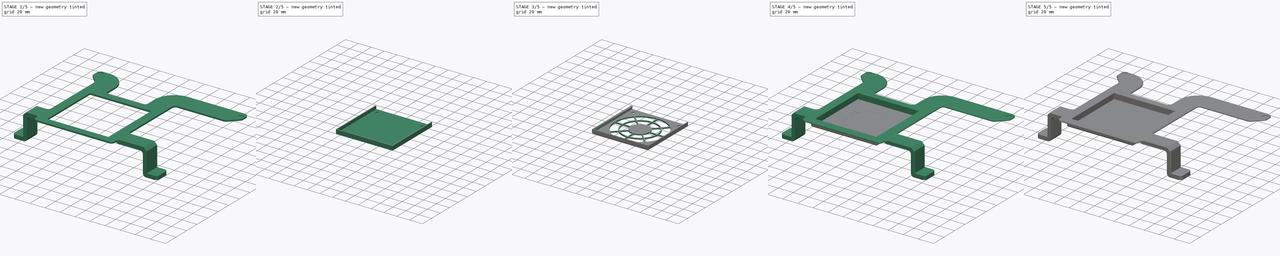
[diagram: build sequence overview — one tinted view per stage of 5, left to right]
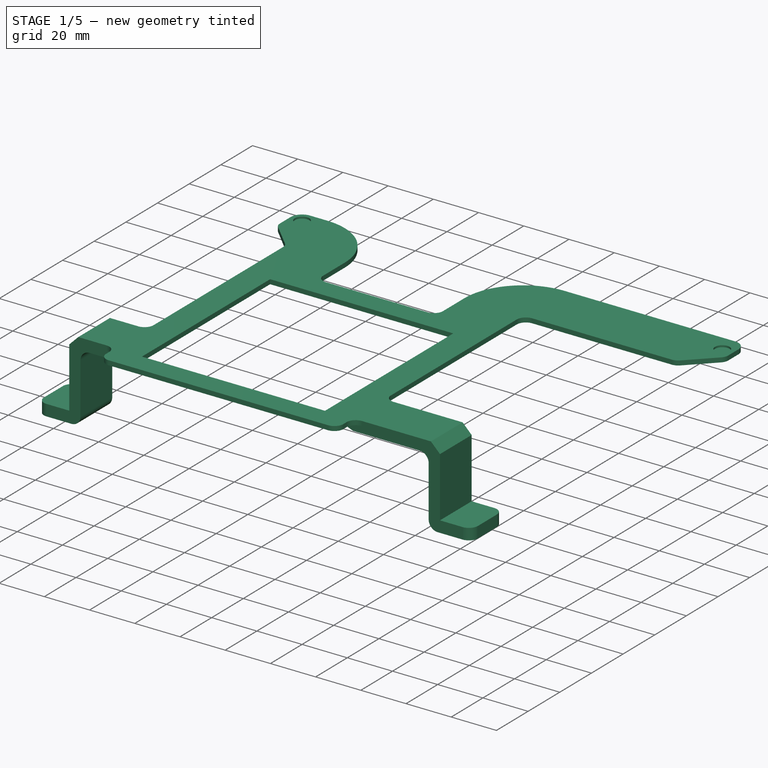
[diagram: stage 1 of 5 — iso view after this stage's code; geometry added in this stage tinted green]
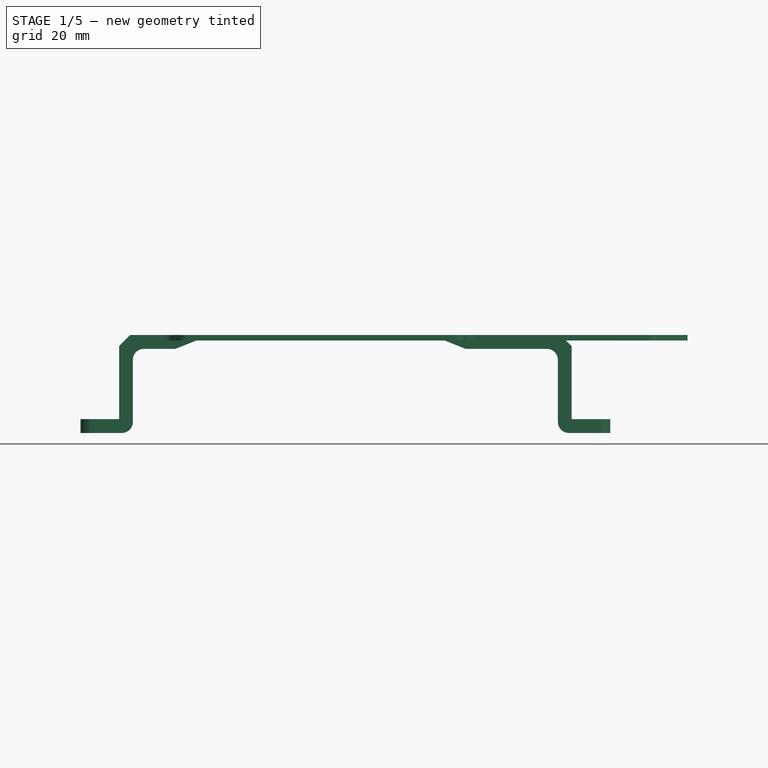
[diagram: stage 1 of 5 — front view after this stage's code; geometry added in this stage tinted green]
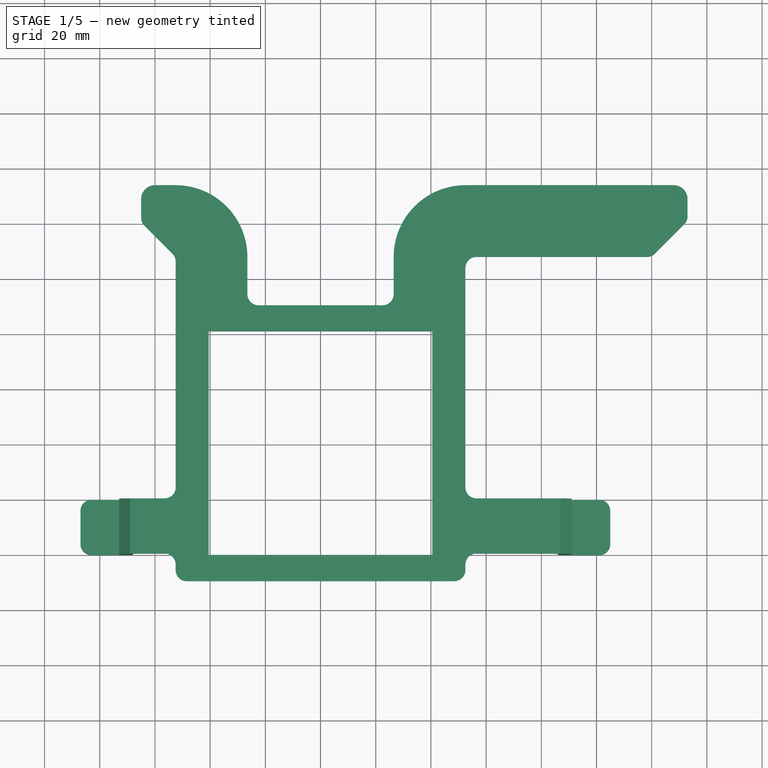
[diagram: stage 1 of 5 — top view after this stage's code; geometry added in this stage tinted green]
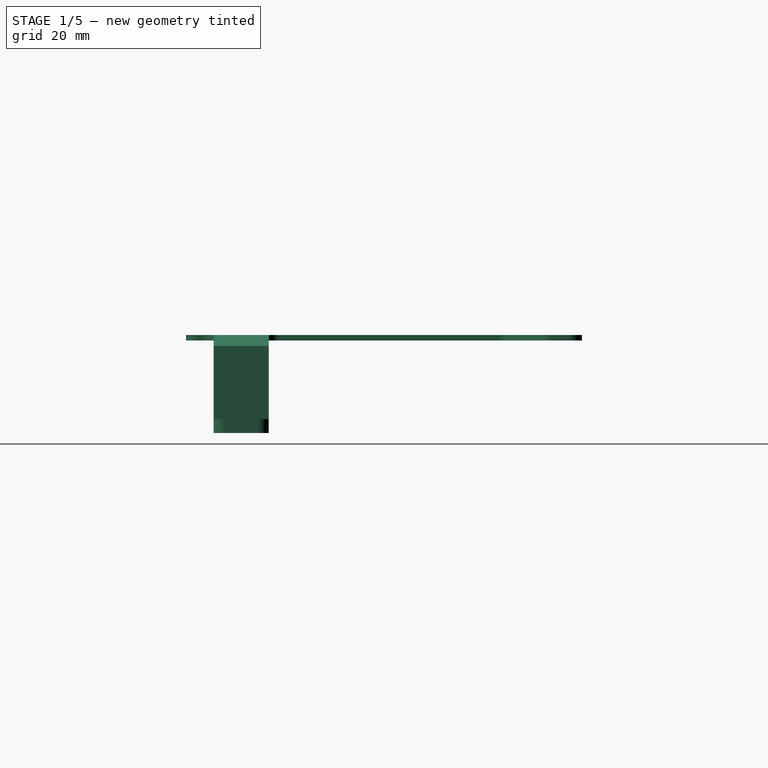
[diagram: stage 1 of 5 — right view after this stage's code; geometry added in this stage tinted green]
FCSTD DOCUMENT  (FreeCAD 1.1R44874 (Git))
Label: 8010FanMount
License: All rights reserved
LicenseURL: http://en.wikipedia.org/wiki/All_rights_reserved
objects: Sketcher::SketchObject×23, PartDesign::Pad×11, PartDesign::ShapeBinder×11, PartDesign::Pocket×7, PartDesign::Chamfer×6, PartDesign::Body×6, App::Point×6, PartDesign::Fillet×4, PartDesign::FeatureBase×3, PartDesign::PolarPattern×3, PartDesign::Plane×1, App::VarSet×1, PartDesign::Groove×1, PartDesign::Revolution×1
note: 166 computed .brp shape members not serialized (recipe doc carries the construction recipe); baked Part::Feature solids carry a one-line shape summary decoded from their .brp

FEATURE [Sketcher::SketchObject] Sketch  label="Template_XY"
  ArcFitTolerance = 1e-06
  AttachmentSupport = -> [XY_Plane]
  ExternalTypes = [0]
  FullyConstrained = true
  MakeInternals = false
  MapMode = 5
  _ExternalGeoVersion = 0
  sketch-geometry (65):
    g0: Circle CenterX=0 CenterY=0 CenterZ=0 NormalX=0 NormalY=0 NormalZ=1 AngleXU=0 Radius=39
    g1: Circle CenterX=-35.7 CenterY=35.7 CenterZ=0 NormalX=0 NormalY=0 NormalZ=1 AngleXU=0 Radius=2.5
    g2: Circle CenterX=35.7 CenterY=35.7 CenterZ=0 NormalX=0 NormalY=0 NormalZ=1 AngleXU=0 Radius=2.5
    g3: LineSegment [constr] StartX=-35.7 StartY=35.7 StartZ=0 EndX=35.7 EndY=35.7 EndZ=0
    g4: LineSegment [constr] StartX=-35.7 StartY=35.7 StartZ=0 EndX=-35.7 EndY=-35.7 EndZ=0
    g5: LineSegment [constr] StartX=-35.7 StartY=-35.7 StartZ=0 EndX=35.7 EndY=-35.7 EndZ=0
    g6: LineSegment [constr] StartX=35.7 StartY=-35.7 StartZ=0 EndX=35.7 EndY=35.7 EndZ=0
    g7: Circle CenterX=-35.7 CenterY=-35.7 CenterZ=0 NormalX=0 NormalY=0 NormalZ=1 AngleXU=0 Radius=2.5
    g8: Circle CenterX=35.7 CenterY=-35.7 CenterZ=0 NormalX=0 NormalY=0 NormalZ=1 AngleXU=0 Radius=2.5
    g9: Circle CenterX=-60 CenterY=88.5 CenterZ=0 NormalX=0 NormalY=0 NormalZ=1 AngleXU=0 Radius=1.8
    g10: Circle CenterX=128 CenterY=85.5 CenterZ=0 NormalX=0 NormalY=0 NormalZ=1 AngleXU=0 Radius=1.8
    g11: Circle CenterX=98 CenterY=-30 CenterZ=0 NormalX=0 NormalY=0 NormalZ=1 AngleXU=0 Radius=2.2
    g12: Circle CenterX=-80 CenterY=-30 CenterZ=0 NormalX=0 NormalY=0 NormalZ=1 AngleXU=0 Radius=2.2
    g13: LineSegment StartX=-52.5 StartY=50 StartZ=0 EndX=-52.5 EndY=-50 EndZ=0
    g14: LineSegment StartX=-52.5 StartY=-50 StartZ=0 EndX=52.5 EndY=-50 EndZ=0
    g15: LineSegment StartX=52.5 StartY=-50 StartZ=0 EndX=52.5 EndY=50 EndZ=0
    g16: LineSegment StartX=52.5 StartY=50 StartZ=0 EndX=-52.5 EndY=50 EndZ=0
    g17: LineSegment StartX=52.5 StartY=93.5 StartZ=0 EndX=128 EndY=93.5 EndZ=0
    g18: LineSegment StartX=133 StartY=88.5 StartZ=0 EndX=133 EndY=80.5 EndZ=0
    g19: LineSegment StartX=26.5 StartY=67.5 StartZ=0 EndX=26.5 EndY=50 EndZ=0
    g20: LineSegment StartX=133 StartY=80.5 StartZ=0 EndX=120 EndY=67.5 EndZ=0
    g21: LineSegment StartX=120 StartY=67.5 StartZ=0 EndX=52.5 EndY=67.5 EndZ=0
    g22: LineSegment StartX=52.5 StartY=67.5 StartZ=0 EndX=52.5 EndY=50 EndZ=0
    g23: LineSegment [constr] StartX=52.5 StartY=67.5 StartZ=0 EndX=26.5 EndY=67.5 EndZ=0
    g24: LineSegment [constr] StartX=52.5 StartY=67.5 StartZ=0 EndX=52.5 EndY=93.5 EndZ=0
    g25: LineSegment StartX=-40.5 StartY=40.5 StartZ=0 EndX=-40.5 EndY=-40.5 EndZ=0
    g26: LineSegment StartX=-40.5 StartY=-40.5 StartZ=0 EndX=40.5 EndY=-40.5 EndZ=0
    g27: LineSegment StartX=40.5 StartY=-40.5 StartZ=0 EndX=40.5 EndY=40.5 EndZ=0
    g28: LineSegment StartX=40.5 StartY=40.5 StartZ=0 EndX=-40.5 EndY=40.5 EndZ=0
    g29: LineSegment StartX=-60 StartY=93.5 StartZ=0 EndX=-52.5 EndY=93.5 EndZ=0
    g30: LineSegment StartX=-26.5 StartY=67.5 StartZ=0 EndX=-26.5 EndY=50 EndZ=0
    g31: LineSegment StartX=-65 StartY=88.5 StartZ=0 EndX=-65 EndY=80 EndZ=0
    g32: LineSegment StartX=-65 StartY=80 StartZ=0 EndX=-52.5 EndY=67.5 EndZ=0
    g33: LineSegment StartX=-52.5 StartY=67.5 StartZ=0 EndX=-52.5 EndY=50 EndZ=0
    g34: LineSegment [constr] StartX=-52.5 StartY=67.5 StartZ=0 EndX=-26.5 EndY=67.5 EndZ=0
    g35: ArcOfCircle CenterX=-52.5 CenterY=67.5 CenterZ=0 NormalX=0 NormalY=0 NormalZ=1 AngleXU=0 Radius=26 StartAngle=3e-16 EndAngle=1.5708
    g36: ArcOfCircle CenterX=-60 CenterY=88.5 CenterZ=0 NormalX=0 NormalY=0 NormalZ=1 AngleXU=0 Radius=5 StartAngle=1.5708 EndAngle=3.14159
    g37: ArcOfCircle CenterX=52.5 CenterY=67.5 CenterZ=0 NormalX=0 NormalY=0 NormalZ=1 AngleXU=0 Radius=26 StartAngle=1.5708 EndAngle=3.14159
    g38: ArcOfCircle CenterX=128 CenterY=88.5 CenterZ=0 NormalX=0 NormalY=0 NormalZ=1 AngleXU=0 Radius=5 StartAngle=-9e-16 EndAngle=1.5708
    g39: LineSegment [constr] StartX=128 StartY=88.5 StartZ=0 EndX=128 EndY=85.5 EndZ=0
    g40: LineSegment StartX=-68 StartY=-40 StartZ=0 EndX=-68 EndY=-20 EndZ=0
    g41: LineSegment StartX=-68 StartY=-20 StartZ=0 EndX=-52.5 EndY=-20 EndZ=0
    g42: LineSegment StartX=-68 StartY=-40 StartZ=0 EndX=-52.5 EndY=-40 EndZ=0
    g43: LineSegment StartX=-73 StartY=-20 StartZ=0 EndX=-87 EndY=-20 EndZ=0
    g44: LineSegment StartX=-87 StartY=-20 StartZ=0 EndX=-87 EndY=-40 EndZ=0
    g45: LineSegment StartX=-87 StartY=-40 StartZ=0 EndX=-73 EndY=-40 EndZ=0
    g46: LineSegment StartX=-73 StartY=-40 StartZ=0 EndX=-73 EndY=-20 EndZ=0
    g47: LineSegment [constr] StartX=-68 StartY=-30 StartZ=0 EndX=-73 EndY=-30 EndZ=0
    g48: LineSegment [constr] StartX=-73 StartY=-30 StartZ=0 EndX=-80 EndY=-30 EndZ=0
    g49: LineSegment [constr] StartX=-80 StartY=-30 StartZ=0 EndX=-87 EndY=-30 EndZ=0
    g50: LineSegment StartX=-68 StartY=-20 StartZ=0 EndX=-73 EndY=-20 EndZ=0
    g51: LineSegment StartX=-68 StartY=-40 StartZ=0 EndX=-73 EndY=-40 EndZ=0
    g52: LineSegment [constr] StartX=98 StartY=-30 StartZ=0 EndX=91 EndY=-30 EndZ=0
    g53: LineSegment [constr] StartX=91 StartY=-30 StartZ=0 EndX=86 EndY=-30 EndZ=0
    g54: LineSegment [constr] StartX=86 StartY=-30 StartZ=0 EndX=-68 EndY=-30 EndZ=0
    g55: LineSegment StartX=91 StartY=-20 StartZ=0 EndX=91 EndY=-40 EndZ=0
    g56: LineSegment StartX=91 StartY=-40 StartZ=0 EndX=105 EndY=-40 EndZ=0
    g57: LineSegment StartX=105 StartY=-40 StartZ=0 EndX=105 EndY=-20 EndZ=0
    g58: LineSegment StartX=105 StartY=-20 StartZ=0 EndX=91 EndY=-20 EndZ=0
    g59: LineSegment [constr] StartX=98 StartY=-30 StartZ=0 EndX=105 EndY=-30 EndZ=0
    g60: LineSegment StartX=91 StartY=-20 StartZ=0 EndX=86 EndY=-20 EndZ=0
    g61: LineSegment StartX=86 StartY=-20 StartZ=0 EndX=86 EndY=-40 EndZ=0
    g62: LineSegment StartX=86 StartY=-40 StartZ=0 EndX=91 EndY=-40 EndZ=0
    g63: LineSegment StartX=86 StartY=-20 StartZ=0 EndX=52.5 EndY=-20 EndZ=0
    g64: LineSegment StartX=86 StartY=-40 StartZ=0 EndX=52.5 EndY=-40 EndZ=0
  constraints (175):
    c: Diameter(g0) = 78
    c: DistanceX(g1,g2) = 71.4
    c: Coincident(g3,g1)
    c: Coincident(g3,g2)
    c: Horizontal(g3)
    c: Coincident(g4,g1)
    c: Vertical(g4)
    c: Equal(g3,g4)
    c: Coincident(g5,g4)
    c: Horizontal(g5)
    c: Coincident(g6,g5)
    c: Coincident(g6,g2)
    c: Vertical(g6)
    c: Symmetric(g4,g2,g0)
    c: Coincident(g7,g4)
    c: Coincident(g8,g5)
    c: Diameter(g1) = 5
    c: Equal(g1,g2)
    c: Equal(g2,g7)
    c: Equal(g7,g8)
    c: Equal(g9,g10)
    c: DistanceX(g9,g10) = 188
    c: DistanceY(g10,g9) = 3
    c: Radius(g11) = 2.2
    c: Coincident(g52,g11)
    c: Equal(g11,g12)
    c: Radius(g9) = 1.8
    c: Coincident(g13,g14)
    c: Coincident(g14,g15)
    c: Coincident(g15,g16)
    c: Coincident(g16,g13)
    c: Vertical(g13)
    c: Vertical(g15)
    c: Horizontal(g14)
    c: Horizontal(g16)
    c: DistanceY(g14,g0) = 50
    c: Horizontal(g17)
    c: Vertical(g18)
    c: DistanceY(g18,g10) = 5
    c: PointOnObject(g19,g16)
    c: Vertical(g19)
    c: DistanceX(g0,g11) = 98
    c: DistanceY(g11,g0) = 30
    c: DistanceX(g9,g0) = 60
    c: Coincident(g0,g-1)  '__ANCHOR__'
    c: Coincident(g20,g18)
    c: Coincident(g21,g20)
    c: Horizontal(g21)
    c: Coincident(g22,g21)
    c: Coincident(g22,g15)
    c: Vertical(g22)
    c: Coincident(g23,g21)
    c: Horizontal(g23)
    c: Coincident(g24,g21)
    c: Vertical(g24)
    c: Coincident(g25,g26)
    c: Coincident(g26,g27)
    c: Coincident(g27,g28)
    c: Coincident(g28,g25)
    c: Vertical(g25)
    c: Vertical(g27)
    c: Horizontal(g26)
    c: Horizontal(g28)
    c: DistanceX(g28,g28) = 81
    c: Equal(g28,g25)
    c: Symmetric(g25,g27,g0)
    c: DistanceY(g0,g9) = 88.5
    c: Symmetric(g13,g15,g0)
    c: DistanceX(g14,g14) = 105
    c: Horizontal(g29)
    c: PointOnObject(g30,g16)
    c: Vertical(g30)
    c: Vertical(g31)
    c: Coincident(g31,g32)
    c: Coincident(g32,g33)
    c: Coincident(g33,g13)
    c: Vertical(g33)
    c: Angle(g32,g33) = 2.35619
    c: Perpendicular(g20,g32)
    c: PointOnObject(g17,g29)
    c: Coincident(g34,g32)
    c: PointOnObject(g34,g30)
    c: Horizontal(g34)
    c: Equal(g23,g34)
    c: Coincident(g35,g32)
    c: Coincident(g35,g29)
    c: Coincident(g35,g30)
    c: PointOnObject(g29,g33)
    c: PointOnObject(g30,g34)
    c: Coincident(g36,g9)
    c: Tangent(g29,g36) = 1.5708
    c: Tangent(g31,g36) = -1.5708
    c: Radius(g36) = 5
    c: Coincident(g17,g24)
    c: Coincident(g19,g23)
    c: Tangent(g17,g37) = 1.5708
    c: Tangent(g19,g37) = -1.5708
    c: Radius(g37) = 26
    c: Tangent(g17,g38) = 1.5708
    c: Tangent(g18,g38) = 1.5708
    c: Equal(g38,g36)
    c: Coincident(g39,g38)
    c: Coincident(g39,g10)
    c: Vertical(g39)
    c: DistanceX(g12,g0) = 80
    c: Vertical(g40)
    c: Coincident(g41,g40)
    c: PointOnObject(g41,g13)
    c: Horizontal(g41)
    c: Coincident(g42,g40)
    c: PointOnObject(g42,g13)
    c: Horizontal(g42)
    c: Coincident(g43,g44)
    c: Coincident(g44,g45)
    c: Coincident(g45,g46)
    c: Coincident(g46,g43)
    c: Horizontal(g43)
    c: Horizontal(g45)
    c: Vertical(g44)
    c: Vertical(g46)
    c: DistanceY(g44,g44) = 20  'ProfileWidth'
    c: Coincident(g47,g54)
    c: Symmetric(g46,g46,g47)
    c: Horizontal(g47)
    c: Coincident(g48,g47)
    c: Coincident(g48,g12)
    c: Horizontal(g48)
    c: Coincident(g49,g12)
    c: Symmetric(g44,g44,g49)
    c: DistanceX(g43,g12) = 7
    c: Equal(g48,g49)
    c: Coincident(g50,g40)
    c: Coincident(g50,g43)
    c: Horizontal(g50)
    c: Coincident(g51,g40)
    c: Coincident(g51,g45)
    c: DistanceX(g50,g50) = 5  'LegThickness'
    c: Coincident(g52,g53)
    c: Horizontal(g52)
    c: Coincident(g53,g54)
    c: Horizontal(g53)
    c: Horizontal(g54)
    c: Equal(g53,g47)
    c: Equal(g52,g48)
    c: PointOnObject(g47,g40)
    c: Horizontal(g51)
    c: Coincident(g55,g56)
    c: Coincident(g56,g57)
    c: Coincident(g57,g58)
    c: Coincident(g58,g55)
    c: Vertical(g55)
    c: Vertical(g57)
    c: Horizontal(g56)
    c: Horizontal(g58)
    c: PointOnObject(g52,g55)
    c: Coincident(g59,g11)
    c: Horizontal(g59)
    c: Coincident(g55,g60)
    c: Horizontal(g60)
    c: Coincident(g60,g61)
    c: Vertical(g61)
    c: Coincident(g61,g62)
    c: Coincident(g62,g55)
    c: Horizontal(g62)
    c: PointOnObject(g53,g61)
    c: Coincident(g63,g60)
    c: PointOnObject(g63,g15)
    c: Horizontal(g63)
    c: Coincident(g64,g61)
    c: PointOnObject(g64,g15)
    c: Horizontal(g64)
    c: Equal(g59,g52)
    c: PointOnObject(g59,g57)
    c: PointOnObject(g63,g41)
    c: PointOnObject(g64,g42)
FEATURE [Sketcher::SketchObject] Sketch001  label="Template XZ"
  ArcFitTolerance = 1e-06
  AttachmentSupport = -> [XZ_Plane]
  ExternalGeometry = -> [Sketch]
  ExternalTypes = [0]
  FullyConstrained = true
  MakeInternals = false
  MapMode = 5
  Placement = pos=(0,0,0) rot=(1,0,0;1.5708rad)
  _ExternalGeoVersion = 0
  expr: Constraints[13] = <<VarSet>>.FanBumpHeight - <<VarSet>>.FanSupportThickness
  expr: Constraints[20] = <<VarSet>>.FanSupportThickness
  sketch-geometry (10):
    g0: LineSegment StartX=-80 StartY=-33.5 StartZ=0 EndX=98 EndY=-33.5 EndZ=0
    g1: LineSegment [constr] StartX=-80 StartY=-6.7e-15 StartZ=0 EndX=-80 EndY=-33.5 EndZ=0
    g2: LineSegment [constr] StartX=98 StartY=-6.7e-15 StartZ=0 EndX=98 EndY=-33.5 EndZ=0
    g3: LineSegment StartX=-40.5 StartY=-9e-15 StartZ=0 EndX=-40.5 EndY=-5.2 EndZ=0
    g4: LineSegment StartX=-40.5 StartY=-5.2 StartZ=0 EndX=40.5 EndY=-5.2 EndZ=0
    g5: LineSegment StartX=40.5 StartY=-5.2 StartZ=0 EndX=40.5 EndY=-8.9e-15 EndZ=0
    g6: LineSegment StartX=-39 StartY=0 StartZ=0 EndX=39 EndY=0 EndZ=0
    g7: LineSegment StartX=-40.5 StartY=-5.2 StartZ=0 EndX=-40.5 EndY=-7 EndZ=0
    g8: LineSegment StartX=-40.5 StartY=-7 StartZ=0 EndX=40.5 EndY=-7 EndZ=0
    g9: LineSegment StartX=40.5 StartY=-7 StartZ=0 EndX=40.5 EndY=-5.2 EndZ=0
  constraints (26):
    c: Horizontal(g0)
    c: Vertical(g1)
    c: Vertical(g2)
    c: DistanceY(g1,g1) = 33.5
    c: Coincident(g1,g0)
    c: Coincident(g0,g2)
    c: Symmetric(g-4,g-4,g2)
    c: Symmetric(g-3,g-3,g1)
    c: Vertical(g3)
    c: Coincident(g4,g3)
    c: Horizontal(g4)
    c: Coincident(g5,g4)
    c: Vertical(g5)
    c: DistanceY(g3,g3) = 5.2
    c: Coincident(g6,g-5)
    c: Coincident(g6,g-5)
    c: Coincident(g3,g-6)
    c: Coincident(g5,g-6)
    c: Coincident(g7,g3)
    c: Vertical(g7)
    c: DistanceY(g7,g7) = 1.8
    c: Coincident(g8,g7)
    c: Horizontal(g8)
    c: Coincident(g9,g8)
    c: Coincident(g9,g4)
    c: Vertical(g9)
FEATURE [Sketcher::SketchObject] Sketch002  label="Base"
  ArcFitTolerance = 1e-06
  AttachmentSupport = -> [XY_Plane]
  ExternalGeometry = -> [Sketch]
  ExternalTypes = [0]
  FullyConstrained = true
  MakeInternals = false
  MapMode = 5
  _ExternalGeoVersion = 0
  sketch-geometry (31):
    g0: LineSegment StartX=-65 StartY=88.5 StartZ=0 EndX=-65 EndY=80 EndZ=0
    g1: LineSegment StartX=-65 StartY=80 StartZ=0 EndX=-52.5 EndY=67.5 EndZ=0
    g2: LineSegment StartX=-52.5 StartY=67.5 StartZ=0 EndX=-52.5 EndY=-20 EndZ=0
    g3: LineSegment StartX=-52.5 StartY=-20 StartZ=0 EndX=-73 EndY=-20 EndZ=0
    g4: LineSegment StartX=-73 StartY=-20 StartZ=0 EndX=-73 EndY=-40 EndZ=0
    g5: LineSegment StartX=-73 StartY=-40 StartZ=0 EndX=-52.5 EndY=-40 EndZ=0
    g6: LineSegment StartX=-52.5 StartY=-40 StartZ=0 EndX=-52.5 EndY=-50 EndZ=0
    g7: LineSegment StartX=-52.5 StartY=-50 StartZ=0 EndX=52.5 EndY=-50 EndZ=0
    g8: LineSegment StartX=52.5 StartY=-50 StartZ=0 EndX=52.5 EndY=-40 EndZ=0
    g9: LineSegment StartX=52.5 StartY=-40 StartZ=0 EndX=91 EndY=-40 EndZ=0
    g10: LineSegment StartX=91 StartY=-40 StartZ=0 EndX=91 EndY=-20 EndZ=0
    g11: LineSegment StartX=91 StartY=-20 StartZ=0 EndX=52.5 EndY=-20 EndZ=0
    g12: LineSegment StartX=52.5 StartY=-20 StartZ=0 EndX=52.5 EndY=67.5 EndZ=0
    g13: LineSegment StartX=52.5 StartY=67.5 StartZ=0 EndX=120 EndY=67.5 EndZ=0
    g14: LineSegment StartX=120 StartY=67.5 StartZ=0 EndX=133 EndY=80.5 EndZ=0
    g15: LineSegment StartX=133 StartY=80.5 StartZ=0 EndX=133 EndY=88.5 EndZ=0
    g16: LineSegment StartX=-60 StartY=93.5 StartZ=0 EndX=-52.5 EndY=93.5 EndZ=0
    g17: LineSegment StartX=-26.5 StartY=67.5 StartZ=0 EndX=-26.5 EndY=50 EndZ=0
    g18: LineSegment StartX=-26.5 StartY=50 StartZ=0 EndX=26.5 EndY=50 EndZ=0
    g19: LineSegment StartX=26.5 StartY=50 StartZ=0 EndX=26.5 EndY=67.5 EndZ=0
    g20: LineSegment StartX=128 StartY=93.5 StartZ=0 EndX=52.5 EndY=93.5 EndZ=0
    g21: ArcOfCircle CenterX=-60 CenterY=88.5 CenterZ=0 NormalX=0 NormalY=0 NormalZ=1 AngleXU=0 Radius=5 StartAngle=1.5708 EndAngle=3.14159
    g22: ArcOfCircle CenterX=-52.5 CenterY=67.5 CenterZ=0 NormalX=0 NormalY=0 NormalZ=1 AngleXU=0 Radius=26 StartAngle=1.87e-14 EndAngle=1.5708
    g23: ArcOfCircle CenterX=52.5 CenterY=67.5 CenterZ=0 NormalX=0 NormalY=0 NormalZ=1 AngleXU=0 Radius=26 StartAngle=1.5708 EndAngle=3.14159
    g24: ArcOfCircle CenterX=128 CenterY=88.5 CenterZ=0 NormalX=0 NormalY=0 NormalZ=1 AngleXU=0 Radius=5 StartAngle=0 EndAngle=1.5708
    g25: Circle CenterX=-60 CenterY=88.5 CenterZ=0 NormalX=0 NormalY=0 NormalZ=1 AngleXU=0 Radius=1.8
    g26: Circle CenterX=128 CenterY=85.5 CenterZ=0 NormalX=0 NormalY=0 NormalZ=1 AngleXU=0 Radius=1.8
    g27: LineSegment StartX=-40.5 StartY=40.5 StartZ=0 EndX=-40.5 EndY=-40.5 EndZ=0
    g28: LineSegment StartX=-40.5 StartY=-40.5 StartZ=0 EndX=40.5 EndY=-40.5 EndZ=0
    g29: LineSegment StartX=40.5 StartY=-40.5 StartZ=0 EndX=40.5 EndY=40.5 EndZ=0
    g30: LineSegment StartX=40.5 StartY=40.5 StartZ=0 EndX=-40.5 EndY=40.5 EndZ=0
  constraints (66):
    c: Coincident(g-4,g0)
    c: Coincident(g0,g1)
    c: Coincident(g1,g-6)
    c: Coincident(g1,g2)
    c: Coincident(g2,g-10)
    c: Coincident(g2,g3)
    c: Coincident(g3,g-12)
    c: Coincident(g3,g4)
    c: Coincident(g4,g-12)
    c: Coincident(g4,g5)
    c: Coincident(g5,g-11)
    c: Coincident(g5,g6)
    c: Coincident(g6,g-9)
    c: Coincident(g6,g7)
    c: Coincident(g7,g-9)
    c: Coincident(g7,g8)
    c: Coincident(g8,g-14)
    c: Coincident(g8,g9)
    c: Coincident(g9,g-15)
    c: Coincident(g9,g10)
    c: Coincident(g10,g-15)
    c: Coincident(g10,g11)
    c: Coincident(g11,g-13)
    c: Coincident(g11,g12)
    c: Coincident(g12,g-17)
    c: Coincident(g12,g13)
    c: Coincident(g13,g-19)
    c: Coincident(g13,g14)
    c: Coincident(g14,g-19)
    c: Coincident(g14,g15)
    c: Coincident(g15,g-18)
    c: Coincident(g0,g-6)
    c: Coincident(g16,g-4)
    c: Coincident(g16,g-3)
    c: Coincident(g17,g-8)
    c: Coincident(g17,g-8)
    c: Coincident(g18,g17)
    c: Coincident(g18,g-16)
    c: Coincident(g18,g19)
    c: Coincident(g19,g-17)
    c: Coincident(g20,g-18)
    c: Coincident(g20,g-17)
    c: Coincident(g21,g0)
    c: Coincident(g21,g16)
    c: Coincident(g22,g16)
    c: Coincident(g22,g17)
    c: Coincident(g23,g19)
    c: Coincident(g23,g20)
    c: Coincident(g24,g20)
    c: Coincident(g24,g15)
    c: Coincident(g25,g-5)
    c: Coincident(g26,g-20)
    c: Equal(g-20,g26)
    c: Equal(g-5,g25)
    c: Equal(g-4,g21)
    c: Equal(g-3,g22)
    c: Equal(g-17,g23)
    c: Equal(g-18,g24)
    c: Coincident(g27,g28)
    c: Coincident(g28,g29)
    c: Coincident(g29,g30)
    c: Coincident(g30,g27)
    c: Coincident(g27,g-21)
    c: Coincident(g28,g-22)
    c: Coincident(g27,g-22)
    c: Coincident(g29,g-21)
FEATURE [PartDesign::Pad] Pad  label="Base_"
  Direction = (0,0,1)
  Length = 2
  Length2 = 10
  Profile = -> Sketch002
  ReferenceAxis = -> Sketch002 [N_Axis]
  SideType = 0
  Suppressed = false
  Type = 0
  Type2 = 0
FEATURE [Sketcher::SketchObject] Sketch003  label="FrameScrewHeads"
  ArcFitTolerance = 1e-06
  AttachmentOffset = pos=(0,0,2) rot=(0,0,1;0rad)
  AttachmentSupport = -> [XY_Plane]
  ExternalGeometry = -> [Sketch]
  ExternalTypes = [0]
  FullyConstrained = true
  MakeInternals = false
  MapMode = 5
  Placement = pos=(0,0,2) rot=(0,0,1;0rad)
  _ExternalGeoVersion = 0
  expr: .AttachmentOffset.Base.z = <<Base_>>.Length
  sketch-geometry (2):
    g0: Circle CenterX=-60 CenterY=88.5 CenterZ=0 NormalX=0 NormalY=0 NormalZ=1 AngleXU=0 Radius=3.2
    g1: Circle CenterX=128 CenterY=85.5 CenterZ=0 NormalX=0 NormalY=0 NormalZ=1 AngleXU=0 Radius=3.2
  constraints (4):
    c: Coincident(g0,g-3)
    c: Coincident(g1,g-4)
    c: Radius(g0) = 3.2
    c: Equal(g0,g1)
FEATURE [PartDesign::Pocket] Pocket  label="FrameScrewHeads_"
  BaseFeature = -> Pad
  Direction = (0,0,-1)
  Length = 0.8
  Length2 = 5
  Profile = -> Sketch003
  ReferenceAxis = -> Sketch003 [N_Axis]
  SideType = 0
  Suppressed = false
  Type = 0
  Type2 = 0
  expr: Length = <<Base_>>.Length - 1.2 mm
FEATURE [PartDesign::Plane] DatumPlane
  AttachmentSupport = -> [Sketch]
  Length = 242.689
  MapMode = 7
  Placement = pos=(-87,-40,0) rot=(0,0.707107,0.707107;3.14159rad)
  ResizeMode = 0
  Width = 81.1892
FEATURE [Sketcher::SketchObject] Sketch004  label="ProfileAttacher"
  ArcFitTolerance = 1e-06
  AttachmentSupport = -> [DatumPlane]
  ExternalGeometry = -> [Sketch,Sketch001]
  ExternalTypes = [0]
  FullyConstrained = true
  MakeInternals = false
  MapMode = 5
  Placement = pos=(-87,-40,0) rot=(0,0.707107,0.707107;3.14159rad)
  _ExternalGeoVersion = 0
  expr: Constraints[27] = <<Template_XY>>.Constraints.LegThickness - <<Base_>>.Length
  sketch-geometry (18):
    g0: LineSegment StartX=-178 StartY=0 StartZ=0 EndX=-139.5 EndY=0 EndZ=0
    g1: LineSegment StartX=-139.5 StartY=0 StartZ=0 EndX=-139.5 EndY=-3 EndZ=0
    g2: LineSegment StartX=-139.5 StartY=-3 StartZ=0 EndX=-173 EndY=-3 EndZ=0
    g3: LineSegment StartX=-173 StartY=-3 StartZ=0 EndX=-173 EndY=-33.5 EndZ=0
    g4: LineSegment StartX=-173 StartY=-33.5 StartZ=0 EndX=-192 EndY=-33.5 EndZ=0
    g5: LineSegment StartX=-192 StartY=-33.5 StartZ=0 EndX=-192 EndY=-28.5 EndZ=0
    g6: LineSegment StartX=-192 StartY=-28.5 StartZ=0 EndX=-178 EndY=-28.5 EndZ=0
    g7: LineSegment StartX=-178 StartY=-28.5 StartZ=0 EndX=-178 EndY=0 EndZ=0
    g8: LineSegment [constr] StartX=-173 StartY=-3 StartZ=0 EndX=-178 EndY=-3 EndZ=0
    g9: LineSegment [constr] StartX=-178 StartY=-28.5 StartZ=0 EndX=-178 EndY=-33.5 EndZ=0
    g10: LineSegment StartX=-14 StartY=0 StartZ=0 EndX=-34.5 EndY=0 EndZ=0
    g11: LineSegment StartX=-34.5 StartY=0 StartZ=0 EndX=-34.5 EndY=-3 EndZ=0
    g12: LineSegment StartX=-34.5 StartY=-3 StartZ=0 EndX=-19 EndY=-3 EndZ=0
    g13: LineSegment StartX=-19 StartY=-3 StartZ=0 EndX=-19 EndY=-33.5 EndZ=0
    g14: LineSegment StartX=-19 StartY=-33.5 StartZ=0 EndX=0 EndY=-33.5 EndZ=0
    g15: LineSegment StartX=0 StartY=-33.5 StartZ=0 EndX=0 EndY=-28.5 EndZ=0
    g16: LineSegment StartX=0 StartY=-28.5 StartZ=0 EndX=-14 EndY=-28.5 EndZ=0
    g17: LineSegment StartX=-14 StartY=-28.5 StartZ=0 EndX=-14 EndY=0 EndZ=0
  constraints (50):
    c: Coincident(g-4,g0)
    c: Coincident(g0,g-3)
    c: Coincident(g0,g1)
    c: Vertical(g1)
    c: Coincident(g1,g2)
    c: Horizontal(g2)
    c: Coincident(g2,g3)
    c: PointOnObject(g3,g-7)
    c: Vertical(g3)
    c: Coincident(g3,g4)
    c: Horizontal(g4)
    c: Coincident(g4,g5)
    c: Vertical(g5)
    c: Coincident(g5,g6)
    c: Horizontal(g6)
    c: Coincident(g6,g7)
    c: Vertical(g7)
    c: PointOnObject(g-3,g3)
    c: PointOnObject(g-4,g5)
    c: Coincident(g8,g2)
    c: PointOnObject(g8,g7)
    c: Horizontal(g8)
    c: Coincident(g9,g6)
    c: PointOnObject(g9,g4)
    c: Vertical(g9)
    c: Equal(g8,g9)
    c: Coincident(g0,g7)
    c: DistanceY(g1,g1) = 3
    c: Coincident(g-6,g10)
    c: Coincident(g10,g-5)
    c: Coincident(g10,g11)
    c: Vertical(g11)
    c: Coincident(g11,g12)
    c: Horizontal(g12)
    c: Coincident(g12,g13)
    c: PointOnObject(g13,g-7)
    c: Vertical(g13)
    c: Coincident(g13,g14)
    c: Horizontal(g14)
    c: Coincident(g14,g15)
    c: Vertical(g15)
    c: Coincident(g15,g16)
    c: Horizontal(g16)
    c: Coincident(g16,g17)
    c: Coincident(g17,g10)
    c: Vertical(g17)
    c: PointOnObject(g-5,g13)
    c: PointOnObject(g11,g2)
    c: PointOnObject(g-6,g15)
    c: PointOnObject(g16,g6)
FEATURE [Sketcher::SketchObject] Sketch005  label="ProfileScrewHoles"
  ArcFitTolerance = 1e-06
  AttachmentSupport = -> [XY_Plane]
  ExternalGeometry = -> [Sketch]
  ExternalTypes = [0]
  FullyConstrained = true
  MakeInternals = false
  MapMode = 5
  _ExternalGeoVersion = 0
  sketch-geometry (2):
    g0: Circle CenterX=-80 CenterY=-30 CenterZ=0 NormalX=0 NormalY=0 NormalZ=1 AngleXU=0 Radius=2.2
    g1: Circle CenterX=98 CenterY=-30 CenterZ=0 NormalX=0 NormalY=0 NormalZ=1 AngleXU=0 Radius=2.2
  constraints (4):
    c: Coincident(g0,g-3)
    c: Coincident(g1,g-4)
    c: Equal(g-4,g1)
    c: Equal(g-3,g0)
FEATURE [Sketcher::SketchObject] Sketch006  label="FrameScrewPlugs"
  ArcFitTolerance = 1e-06
  AttachmentOffset = pos=(0,0,1.2) rot=(0,0,1;0rad)
  AttachmentSupport = -> [XY_Plane]
  ExternalGeometry = -> [Sketch]
  ExternalTypes = [0]
  FullyConstrained = true
  MakeInternals = false
  MapMode = 5
  Placement = pos=(0,0,1.2) rot=(0,0,1;0rad)
  _ExternalGeoVersion = 0
  expr: .AttachmentOffset.Base.z = <<FrameScrewHeads>>.Placement.Base.z - <<FrameScrewHeads_>>.Length
  sketch-geometry (2):
    g0: Circle CenterX=-60 CenterY=88.5 CenterZ=0 NormalX=0 NormalY=0 NormalZ=1 AngleXU=0 Radius=1.8
    g1: Circle CenterX=128 CenterY=85.5 CenterZ=0 NormalX=0 NormalY=0 NormalZ=1 AngleXU=0 Radius=1.8
  constraints (4):
    c: Coincident(g0,g-3)
    c: Coincident(g1,g-4)
    c: Equal(g1,g-4)
    c: Equal(g0,g-3)
FEATURE [PartDesign::Pad] Pad002  label="FrameScrewPlugs_"
  BaseFeature = -> Pocket
  Direction = (0,0,1)
  Length = 0.12
  Length2 = 10
  Profile = -> Sketch006
  ReferenceAxis = -> Sketch006 [N_Axis]
  Refine = true
  Reversed = true
  SideType = 0
  Suppressed = false
  Type = 0
  Type2 = 0
  expr: Length = <<VarSet>>.HolePlugThickness
FEATURE [PartDesign::Pad] Pad001  label="ProfileAttacher_"
  BaseFeature = -> Pad002
  Direction = (0,1,-2e-16)
  Length = 20
  Length2 = 10
  Profile = -> Sketch004
  ReferenceAxis = -> Sketch004 [N_Axis]
  Refine = true
  SideType = 0
  Suppressed = false
  Type = 0
  Type2 = 0
  expr: Length = <<Template_XY>>.Constraints.ProfileWidth
FEATURE [PartDesign::Chamfer] Chamfer001  label="ProfileAttacherCamfer1"
  Angle = 46
  Base = -> Pad001 [Edge26,Edge22]
  BaseFeature = -> Pad001
  ChamferType = 1
  FlipDirection = false
  Size = 7.5
  Size2 = 2.99
  SupportTransform = false
  Suppressed = false
  UseAllEdges = false
  expr: Size = (<<Template_XY>>.Constraints.LegThickness - <<Base_>>.Length) * 2.5
  expr: Size2 = <<Template_XY>>.Constraints.LegThickness - <<Base_>>.Length - 0.01 mm
FEATURE [Sketcher::SketchObject] Sketch007  label="FanFrame"
  ArcFitTolerance = 1e-06
  AttachmentSupport = -> [XY_Plane]
  ExternalGeometry = -> [Sketch]
  ExternalTypes = [0]
  FullyConstrained = true
  MakeInternals = false
  MapMode = 5
  _ExternalGeoVersion = 0
  sketch-geometry (12):
    g0: LineSegment StartX=-42.5 StartY=42.5 StartZ=0 EndX=-42.5 EndY=-42.5 EndZ=0
    g1: LineSegment StartX=-42.5 StartY=-42.5 StartZ=0 EndX=42.5 EndY=-42.5 EndZ=0
    g2: LineSegment StartX=42.5 StartY=-42.5 StartZ=0 EndX=42.5 EndY=42.5 EndZ=0
    g3: LineSegment StartX=42.5 StartY=42.5 StartZ=0 EndX=-42.5 EndY=42.5 EndZ=0
    g4: LineSegment StartX=-40.5 StartY=40.5 StartZ=0 EndX=-40.5 EndY=-40.5 EndZ=0
    g5: LineSegment StartX=-40.5 StartY=-40.5 StartZ=0 EndX=40.5 EndY=-40.5 EndZ=0
    g6: LineSegment StartX=40.5 StartY=-40.5 StartZ=0 EndX=40.5 EndY=40.5 EndZ=0
    g7: LineSegment StartX=40.5 StartY=40.5 StartZ=0 EndX=-40.5 EndY=40.5 EndZ=0
    g8: LineSegment [constr] StartX=-40.5 StartY=40.5 StartZ=0 EndX=-42.5 EndY=40.5 EndZ=0
    g9: LineSegment [constr] StartX=40.5 StartY=40.5 StartZ=0 EndX=40.5 EndY=42.5 EndZ=0
    g10: LineSegment [constr] StartX=40.5 StartY=-40.5 StartZ=0 EndX=42.5 EndY=-40.5 EndZ=0
    g11: LineSegment [constr] StartX=-40.5 StartY=-40.5 StartZ=0 EndX=-40.5 EndY=-42.5 EndZ=0
  constraints (32):
    c: Coincident(g0,g1)
    c: Coincident(g1,g2)
    c: Coincident(g2,g3)
    c: Coincident(g3,g0)
    c: Vertical(g0)
    c: Vertical(g2)
    c: Horizontal(g1)
    c: Horizontal(g3)
    c: Coincident(g4,g5)
    c: Coincident(g5,g6)
    c: Coincident(g6,g7)
    c: Coincident(g7,g4)
    c: Coincident(g4,g-3)
    c: Coincident(g5,g-4)
    c: Coincident(g4,g-4)
    c: Coincident(g6,g-3)
    c: Coincident(g8,g4)
    c: PointOnObject(g8,g0)
    c: Horizontal(g8)
    c: Coincident(g9,g6)
    c: PointOnObject(g9,g3)
    c: Vertical(g9)
    c: Coincident(g10,g5)
    c: PointOnObject(g10,g2)
    c: Horizontal(g10)
    c: Coincident(g11,g4)
    c: PointOnObject(g11,g1)
    c: Vertical(g11)
    c: Equal(g8,g9)
    c: Equal(g9,g10)
    c: Equal(g10,g11)
    c: DistanceX(g0,g4) = 2
FEATURE [Sketcher::SketchObject] Sketch008  label="FanSupport"
  ArcFitTolerance = 1e-06
  AttachmentOffset = pos=(0,0,-7) rot=(0,0,1;0rad)
  AttachmentSupport = -> [XY_Plane]
  ExternalGeometry = -> [Sketch]
  ExternalTypes = [0]
  FullyConstrained = true
  MakeInternals = false
  MapMode = 5
  Placement = pos=(0,0,-7) rot=(0,0,1;0rad)
  _ExternalGeoVersion = 0
  expr: .AttachmentOffset.Base.z = <<FanFrame>>.Placement.Base.z - <<FanFrame_>>.Length
  sketch-geometry (8):
    g0: LineSegment StartX=-40.5 StartY=40.5 StartZ=0 EndX=-40.5 EndY=-40.5 EndZ=0
    g1: LineSegment StartX=-40.5 StartY=-40.5 StartZ=0 EndX=40.5 EndY=-40.5 EndZ=0
    g2: LineSegment StartX=40.5 StartY=-40.5 StartZ=0 EndX=40.5 EndY=40.5 EndZ=0
    g3: LineSegment StartX=40.5 StartY=40.5 StartZ=0 EndX=-40.5 EndY=40.5 EndZ=0
    g4: Circle CenterX=-35.7 CenterY=35.7 CenterZ=0 NormalX=0 NormalY=0 NormalZ=1 AngleXU=0 Radius=2.5
    g5: Circle CenterX=35.7 CenterY=35.7 CenterZ=0 NormalX=0 NormalY=0 NormalZ=1 AngleXU=0 Radius=2.5
    g6: Circle CenterX=35.7 CenterY=-35.7 CenterZ=0 NormalX=0 NormalY=0 NormalZ=1 AngleXU=0 Radius=2.5
    g7: Circle CenterX=-35.7 CenterY=-35.7 CenterZ=0 NormalX=0 NormalY=0 NormalZ=1 AngleXU=0 Radius=2.5
  constraints (16):
    c: Coincident(g0,g1)
    c: Coincident(g1,g2)
    c: Coincident(g2,g3)
    c: Coincident(g3,g0)
    c: Coincident(g0,g-3)
    c: Coincident(g1,g-4)
    c: Coincident(g2,g-3)
    c: Coincident(g0,g-4)
    c: Coincident(g4,g-6)
    c: Coincident(g5,g-7)
    c: Coincident(g6,g-8)
    c: Coincident(g7,g-5)
    c: Equal(g-6,g4)
    c: Equal(g-7,g5)
    c: Equal(g-8,g6)
    c: Equal(g-5,g7)
FEATURE [Sketcher::SketchObject] Sketch009  label="FanSupportScrewPlugs"
  ArcFitTolerance = 1e-06
  AttachmentOffset = pos=(0,0,-5.2) rot=(0,0,1;0rad)
  AttachmentSupport = -> [XY_Plane]
  ExternalGeometry = -> [Sketch]
  ExternalTypes = [0]
  FullyConstrained = true
  MakeInternals = false
  MapMode = 5
  Placement = pos=(0,0,-5.2) rot=(0,0,1;0rad)
  _ExternalGeoVersion = 0
  expr: .AttachmentOffset.Base.z = <<FanSupport>>.Placement.Base.z + <<FanSupport_>>.Length
  sketch-geometry (4):
    g0: Circle CenterX=-35.7 CenterY=35.7 CenterZ=0 NormalX=0 NormalY=0 NormalZ=1 AngleXU=0 Radius=2.5
    g1: Circle CenterX=35.7 CenterY=35.7 CenterZ=0 NormalX=0 NormalY=0 NormalZ=1 AngleXU=0 Radius=2.5
    g2: Circle CenterX=35.7 CenterY=-35.7 CenterZ=0 NormalX=0 NormalY=0 NormalZ=1 AngleXU=0 Radius=2.5
    g3: Circle CenterX=-35.7 CenterY=-35.7 CenterZ=0 NormalX=0 NormalY=0 NormalZ=1 AngleXU=0 Radius=2.5
  constraints (8):
    c: Coincident(g0,g-3)
    c: Coincident(g1,g-4)
    c: Equal(g1,g-4)
    c: Coincident(g2,g-5)
    c: Equal(g2,g-5)
    c: Coincident(g3,g-6)
    c: Equal(g3,g-6)
    c: Equal(g0,g-3)
FEATURE [PartDesign::Chamfer] Chamfer002  label="ProfileAttacherCamfer2"
  Angle = 45
  Base = -> Chamfer001 [Edge127,Edge126]
  BaseFeature = -> Chamfer001
  ChamferType = 0
  FlipDirection = false
  Size = 4
  Size2 = 1
  SupportTransform = false
  Suppressed = false
  UseAllEdges = false
FEATURE [PartDesign::Fillet] Fillet  label="LargeFillet"
  Base = -> Chamfer002 [Edge103,Edge8,Edge86,Edge146,Edge83,Edge116,Edge147,Edge88,Edge112,Edge97,Edge95,Edge45,Edge3,Edge111,Edge121,Edge122,Edge124,Edge126,Edge92,Edge93,Edge91]
  BaseFeature = -> Chamfer002
  Radius = 4
  SupportTransform = false
  Suppressed = false
  UseAllEdges = false
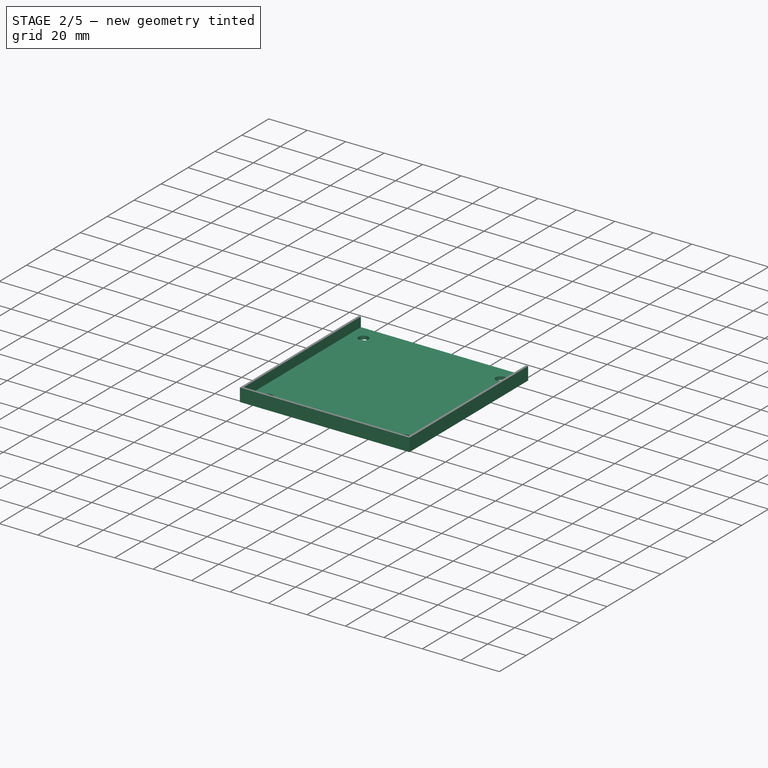
[diagram: stage 2 of 5 — iso view after this stage's code; geometry added in this stage tinted green]
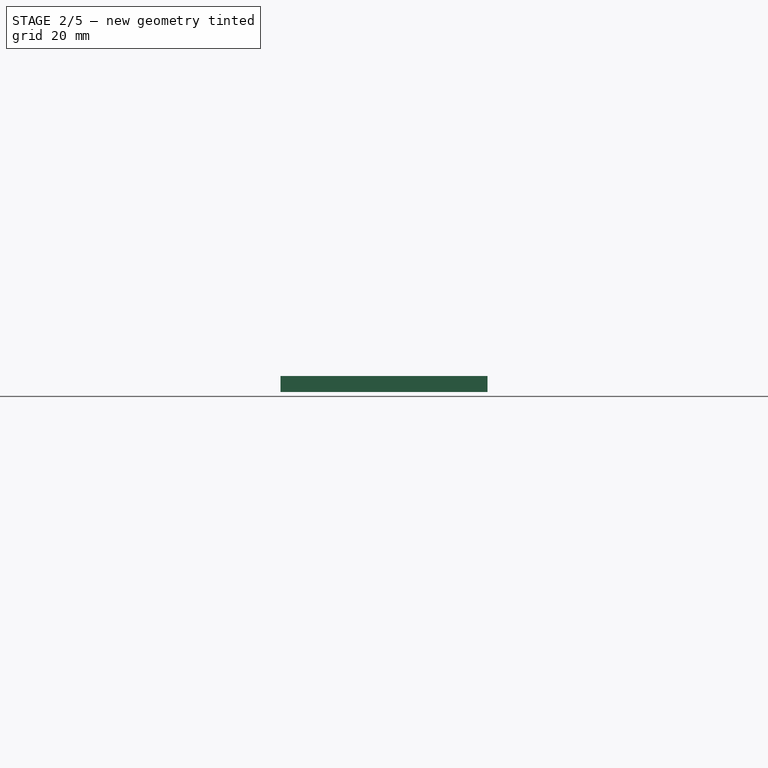
[diagram: stage 2 of 5 — front view after this stage's code; geometry added in this stage tinted green]
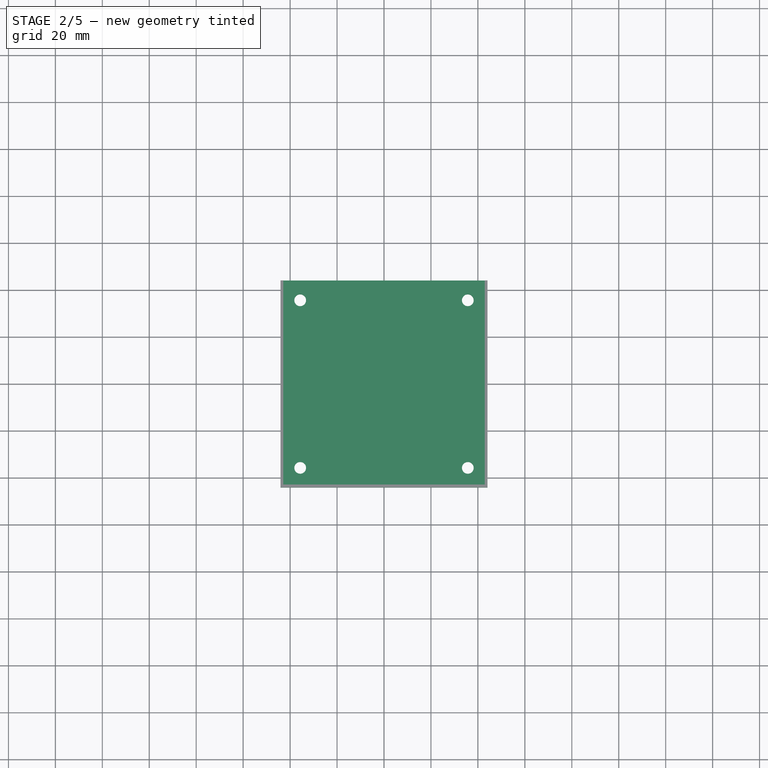
[diagram: stage 2 of 5 — top view after this stage's code; geometry added in this stage tinted green]
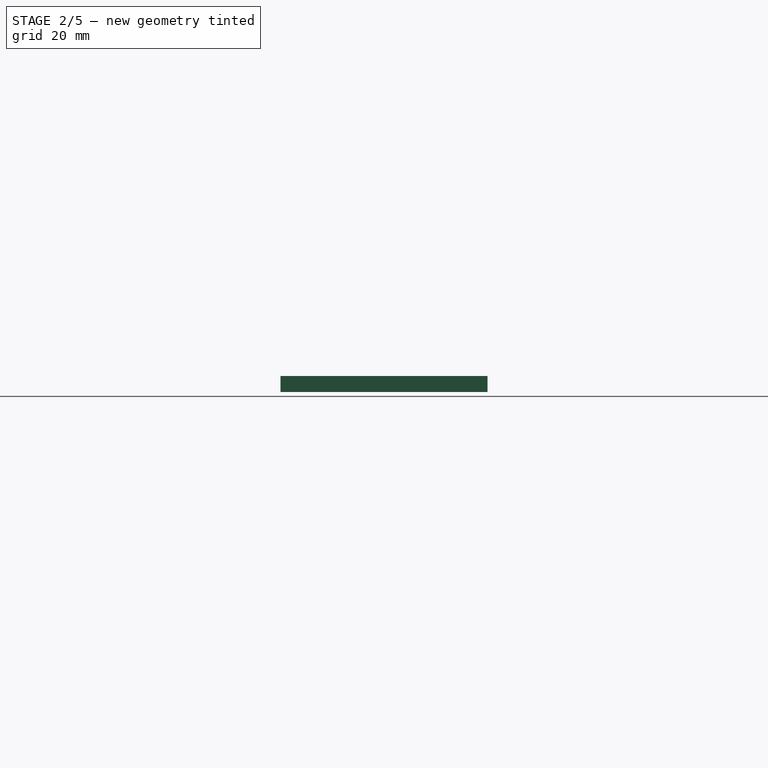
[diagram: stage 2 of 5 — right view after this stage's code; geometry added in this stage tinted green]
FEATURE [PartDesign::Chamfer] Chamfer003  label="FinalChamfer"
  Angle = 45
  Base = -> Fillet [Edge38,Edge27,Edge150,Edge149,Edge162,Edge165,Edge3,Edge61,Edge108,Edge5]
  BaseFeature = -> Fillet
  ChamferType = 0
  FlipDirection = false
  Size = 1
  Size2 = 1
  SupportTransform = false
  Suppressed = false
  UseAllEdges = false
FEATURE [PartDesign::Pocket] Pocket001  label="ProfileScrewHoles_"
  BaseFeature = -> Chamfer003
  Direction = (0,0,-1)
  Length = 5
  Length2 = 5
  Profile = -> Sketch005
  ReferenceAxis = -> Sketch005 [N_Axis]
  SideType = 0
  Suppressed = false
  Type = 1
  Type2 = 0
FEATURE [Sketcher::SketchObject] Sketch010  label="ProfileScrewPlugs"
  ArcFitTolerance = 1e-06
  AttachmentSupport = -> [Pocket001]
  ExternalGeometry = -> [Sketch]
  ExternalTypes = [0]
  FullyConstrained = true
  MakeInternals = false
  MapMode = 5
  Placement = pos=(0,-6.3e-15,-28.5) rot=(0,0,1;0rad)
  _ExternalGeoVersion = 0
  sketch-geometry (2):
    g0: Circle CenterX=-80 CenterY=-30 CenterZ=0 NormalX=0 NormalY=0 NormalZ=1 AngleXU=0 Radius=2.2
    g1: Circle CenterX=98 CenterY=-30 CenterZ=0 NormalX=0 NormalY=0 NormalZ=1 AngleXU=0 Radius=2.2
  constraints (4):
    c: Coincident(g0,g-3)
    c: Equal(g0,g-3)
    c: Coincident(g1,g-4)
    c: Equal(g1,g-4)
FEATURE [PartDesign::Pad] Pad006  label="ProfileScrewPlugs_"
  BaseFeature = -> Pocket001
  Direction = (0,0,1)
  Length = 0.12
  Length2 = 10
  Profile = -> Sketch010
  ReferenceAxis = -> Sketch010 [N_Axis]
  Refine = true
  Reversed = true
  SideType = 0
  Suppressed = false
  Type = 0
  Type2 = 0
  expr: Length = <<VarSet>>.HolePlugThickness
FEATURE [PartDesign::Body] Body003  label="ExtGrill"
  AllowCompound = false
  Group = -> [ShapeBinder002,ShapeBinder003,Sketch017,Revolution,Sketch018,Pocket004,PolarPattern001]
  Origin = -> Origin003
  Tip = -> PolarPattern001
FEATURE [PartDesign::FeatureBase] Clone002
  BaseFeature = -> Pad006
  Suppressed = false
FEATURE [PartDesign::ShapeBinder] ShapeBinder004  label="HSG_HB_Template_XY"
  Support = -> [Sketch]
  TraceSupport = false
FEATURE [PartDesign::ShapeBinder] ShapeBinder005  label="HSG_HB_Template_XZ"
  Placement = pos=(0,0,0) rot=(1,0,0;1.5708rad)
  Support = -> [Sketch001]
  TraceSupport = false
FEATURE [Sketcher::SketchObject] Sketch019  label="HSG_Walls"
  ArcFitTolerance = 1e-06
  AttachmentSupport = -> [XY_Plane004]
  ExternalGeometry = -> [ShapeBinder004]
  ExternalTypes = [0]
  FullyConstrained = true
  MakeInternals = false
  MapMode = 5
  _ExternalGeoVersion = 0
  sketch-geometry (12):
    g0: LineSegment StartX=-40.5 StartY=40.5 StartZ=0 EndX=-40.5 EndY=-40.5 EndZ=0
    g1: LineSegment StartX=-40.5 StartY=-40.5 StartZ=0 EndX=40.5 EndY=-40.5 EndZ=0
    g2: LineSegment StartX=40.5 StartY=-40.5 StartZ=0 EndX=40.5 EndY=40.5 EndZ=0
    g3: LineSegment StartX=40.5 StartY=40.5 StartZ=0 EndX=-40.5 EndY=40.5 EndZ=0
    g4: LineSegment StartX=-42.7 StartY=42.7 StartZ=0 EndX=-42.7 EndY=-42.7 EndZ=0
    g5: LineSegment StartX=-42.7 StartY=-42.7 StartZ=0 EndX=42.7 EndY=-42.7 EndZ=0
    g6: LineSegment StartX=42.7 StartY=-42.7 StartZ=0 EndX=42.7 EndY=42.7 EndZ=0
    g7: LineSegment StartX=42.7 StartY=42.7 StartZ=0 EndX=-42.7 EndY=42.7 EndZ=0
    g8: LineSegment [constr] StartX=-40.5 StartY=40.5 StartZ=0 EndX=-42.7 EndY=40.5 EndZ=0
    g9: LineSegment [constr] StartX=40.5 StartY=40.5 StartZ=0 EndX=40.5 EndY=42.7 EndZ=0
    g10: LineSegment [constr] StartX=40.5 StartY=-40.5 StartZ=0 EndX=42.7 EndY=-40.5 EndZ=0
    g11: LineSegment [constr] StartX=-40.5 StartY=-40.5 StartZ=0 EndX=-40.5 EndY=-42.7 EndZ=0
  constraints (32):
    c: Coincident(g0,g1)
    c: Coincident(g1,g2)
    c: Coincident(g2,g3)
    c: Coincident(g3,g0)
    c: Coincident(g0,g-3)
    c: Coincident(g1,g-4)
    c: Coincident(g2,g-3)
    c: Coincident(g0,g-4)
    c: Coincident(g4,g5)
    c: Coincident(g5,g6)
    c: Coincident(g6,g7)
    c: Coincident(g7,g4)
    c: Vertical(g4)
    c: Vertical(g6)
    c: Horizontal(g5)
    c: Horizontal(g7)
    c: Coincident(g8,g0)
    c: PointOnObject(g8,g4)
    c: Horizontal(g8)
    c: Coincident(g9,g2)
    c: PointOnObject(g9,g7)
    c: Vertical(g9)
    c: Coincident(g10,g1)
    c: PointOnObject(g10,g6)
    c: Horizontal(g10)
    c: Coincident(g11,g0)
    c: PointOnObject(g11,g5)
    c: Vertical(g11)
    c: DistanceX(g4,g0) = 2.2
    c: Equal(g8,g9)
    c: Equal(g9,g10)
    c: Equal(g10,g11)
FEATURE [PartDesign::Pad] Pad007  label="HSG_Walls_"
  BaseFeature = -> Clone002
  Direction = (0,0,1)
  Length = 5
  Length2 = 10
  Profile = -> Sketch019
  ReferenceAxis = -> Sketch019 [N_Axis]
  Refine = true
  Reversed = true
  SideType = 0
  Suppressed = false
  Type = 0
  Type2 = 0
  expr: Length = <<VarSet>>.FanBumpHeight - <<VarSet>>.FanSupportThickness - <<VarSet>>.Tolerance
FEATURE [PartDesign::Body] Body004  label="HolderSlidingGrill"
  AllowCompound = false
  Group = -> [Clone002,ShapeBinder004,ShapeBinder005,Sketch019,Pad007,Fillet002,Sketch020,Pocket005]
  Origin = -> Origin004
  Tip = -> Pocket005
FEATURE [PartDesign::ShapeBinder] ShapeBinder006  label="SG_HB_Template_XY"
  Support = -> [Sketch]
  TraceSupport = false
FEATURE [PartDesign::ShapeBinder] ShapeBinder007  label="SG_HB_Template_XZ"
  Placement = pos=(0,0,0) rot=(1,0,0;1.5708rad)
  Support = -> [Sketch001]
  TraceSupport = false
FEATURE [PartDesign::ShapeBinder] ShapeBinder008  label="SG_HSG_Walls"
  Support = -> [Sketch019]
  TraceSupport = false
FEATURE [PartDesign::ShapeBinder] ShapeBinder009  label="SG_HSG_GuideGroove"
  Placement = pos=(0,0,0) rot=(1,0,0;1.5708rad)
  Support = -> [Sketch020]
  TraceSupport = false
FEATURE [PartDesign::ShapeBinder] ShapeBinder010  label="SG_HWG_GrillCuts"
  Placement = pos=(0,0,-7) rot=(0,0,1;0rad)
  Support = -> [Sketch013]
  TraceSupport = false
FEATURE [Sketcher::SketchObject] Sketch021  label="SG_Walls"
  ArcFitTolerance = 1e-06
  AttachmentOffset = pos=(0,0,-0.2) rot=(0,0,1;0rad)
  AttachmentSupport = -> [XY_Plane005]
  ExternalGeometry = -> [ShapeBinder008]
  ExternalTypes = [0]
  FullyConstrained = true
  MakeInternals = false
  MapMode = 5
  Placement = pos=(0,0,-0.2) rot=(0,0,1;0rad)
  _ExternalGeoVersion = 0
  expr: .AttachmentOffset.Base.z = -<<VarSet>>.Tolerance
  expr: Constraints[45] = <<VarSet>>.Tolerance
  sketch-geometry (19):
    g0: LineSegment StartX=-42.9 StartY=42.9 StartZ=0 EndX=-42.9 EndY=-42.9 EndZ=0
    g1: LineSegment StartX=-42.9 StartY=-42.9 StartZ=0 EndX=42.9 EndY=-42.9 EndZ=0
    g2: LineSegment StartX=42.9 StartY=-42.9 StartZ=0 EndX=42.9 EndY=42.9 EndZ=0
    g3: LineSegment [constr] StartX=42.9 StartY=42.9 StartZ=0 EndX=-42.9 EndY=42.9 EndZ=0
    g4: LineSegment StartX=-44.1 StartY=44.1 StartZ=0 EndX=-44.1 EndY=-44.1 EndZ=0
    g5: LineSegment StartX=-44.1 StartY=-44.1 StartZ=0 EndX=44.1 EndY=-44.1 EndZ=0
    g6: LineSegment StartX=44.1 StartY=-44.1 StartZ=0 EndX=44.1 EndY=44.1 EndZ=0
    g7: LineSegment StartX=-42.9 StartY=42.9 StartZ=0 EndX=-42.9 EndY=44.1 EndZ=0
    g8: LineSegment [constr] StartX=42.9 StartY=42.9 StartZ=0 EndX=44.1 EndY=42.9 EndZ=0
    g9: LineSegment [constr] StartX=42.9 StartY=-42.9 StartZ=0 EndX=42.9 EndY=-44.1 EndZ=0
    g10: LineSegment [constr] StartX=-42.9 StartY=-42.9 StartZ=0 EndX=-44.1 EndY=-42.9 EndZ=0
    g11: LineSegment [constr] StartX=-42.7 StartY=42.7 StartZ=0 EndX=-42.7 EndY=42.9 EndZ=0
    g12: LineSegment [constr] StartX=42.7 StartY=42.7 StartZ=0 EndX=42.9 EndY=42.7 EndZ=0
    g13: LineSegment [constr] StartX=42.7 StartY=-42.7 StartZ=0 EndX=42.7 EndY=-42.9 EndZ=0
    g14: LineSegment [constr] StartX=-42.7 StartY=-42.7 StartZ=0 EndX=-42.9 EndY=-42.7 EndZ=0
    g15: LineSegment StartX=-42.9 StartY=44.1 StartZ=0 EndX=-44.1 EndY=44.1 EndZ=0
    g16: LineSegment StartX=44.1 StartY=44.1 StartZ=0 EndX=42.9 EndY=44.1 EndZ=0
    g17: LineSegment [constr] StartX=42.9 StartY=44.1 StartZ=0 EndX=-42.9 EndY=44.1 EndZ=0
    g18: LineSegment StartX=42.9 StartY=42.9 StartZ=0 EndX=42.9 EndY=44.1 EndZ=0
  constraints (56):
    c: Coincident(g0,g1)
    c: Coincident(g1,g2)
    c: Coincident(g2,g3)
    c: Coincident(g3,g0)
    c: Vertical(g0)
    c: Vertical(g2)
    c: Horizontal(g1)
    c: Horizontal(g3)
    c: Coincident(g4,g5)
    c: Coincident(g5,g6)
    c: Coincident(g6,g16)
    c: Coincident(g15,g4)
    c: Vertical(g4)
    c: Vertical(g6)
    c: Horizontal(g5)
    c: Coincident(g7,g0)
    c: Vertical(g7)
    c: Coincident(g8,g2)
    c: PointOnObject(g8,g6)
    c: Horizontal(g8)
    c: Coincident(g9,g1)
    c: PointOnObject(g9,g5)
    c: Vertical(g9)
    c: Coincident(g10,g0)
    c: PointOnObject(g10,g4)
    c: Horizontal(g10)
    c: Equal(g7,g8)
    c: Equal(g8,g9)
    c: Equal(g9,g10)
    c: DistanceX(g4,g7) = 1.2  'Thickness'
    c: Coincident(g11,g-3)
    c: PointOnObject(g11,g3)
    c: Vertical(g11)
    c: Coincident(g12,g-3)
    c: PointOnObject(g12,g2)
    c: Horizontal(g12)
    c: Coincident(g13,g-4)
    c: PointOnObject(g13,g1)
    c: Vertical(g13)
    c: Coincident(g14,g-4)
    c: PointOnObject(g14,g0)
    c: Horizontal(g14)
    c: Equal(g11,g12)
    c: Equal(g12,g13)
    c: Equal(g13,g14)
    c: DistanceX(g7,g11) = 0.2
    c: Coincident(g17,g15)
    c: Horizontal(g15)
    c: Coincident(g16,g17)
    c: Horizontal(g16)
    c: Horizontal(g17)
    c: Coincident(g18,g2)
    c: Coincident(g18,g16)
    c: Vertical(g18)
    c: Coincident(g15,g7)
    c: DistanceY(g4,g4) = 88.2  'RidgeLen'
FEATURE [PartDesign::Pad] Pad008  label="SG_Walls_"
  Direction = (0,0,1)
  Length = 5
  Length2 = 10
  Profile = -> Sketch021
  ReferenceAxis = -> Sketch021 [N_Axis]
  Refine = true
  Reversed = true
  SideType = 0
  Suppressed = false
  Type = 0
  Type2 = 0
  expr: Length = <<HSG_Walls_>>.Length
FEATURE [Sketcher::SketchObject] Sketch022  label="SG_FanSupport"
  ArcFitTolerance = 1e-06
  AttachmentOffset = pos=(0,0,-5.2) rot=(0,0,1;0rad)
  AttachmentSupport = -> [XY_Plane005]
  ExternalGeometry = -> [Sketch021,ShapeBinder006]
  ExternalTypes = [0]
  FullyConstrained = true
  MakeInternals = false
  MapMode = 5
  Placement = pos=(0,0,-5.2) rot=(0,0,1;0rad)
  _ExternalGeoVersion = 0
  expr: .AttachmentOffset.Base.z = <<SG_Walls>>.Placement.Base.z - <<SG_Walls_>>.Length
  sketch-geometry (8):
    g0: LineSegment StartX=-44.1 StartY=44.1 StartZ=0 EndX=-44.1 EndY=-44.1 EndZ=0
    g1: LineSegment StartX=-44.1 StartY=-44.1 StartZ=0 EndX=44.1 EndY=-44.1 EndZ=0
    g2: LineSegment StartX=44.1 StartY=-44.1 StartZ=0 EndX=44.1 EndY=44.1 EndZ=0
    g3: LineSegment StartX=44.1 StartY=44.1 StartZ=0 EndX=-44.1 EndY=44.1 EndZ=0
    g4: Circle CenterX=-35.7 CenterY=35.7 CenterZ=0 NormalX=0 NormalY=0 NormalZ=1 AngleXU=0 Radius=2.5
    g5: Circle CenterX=35.7 CenterY=35.7 CenterZ=0 NormalX=0 NormalY=0 NormalZ=1 AngleXU=0 Radius=2.5
    g6: Circle CenterX=35.7 CenterY=-35.7 CenterZ=0 NormalX=0 NormalY=0 NormalZ=1 AngleXU=0 Radius=2.5
    g7: Circle CenterX=-35.7 CenterY=-35.7 CenterZ=0 NormalX=0 NormalY=0 NormalZ=1 AngleXU=0 Radius=2.5
  constraints (16):
    c: Coincident(g0,g1)
    c: Coincident(g1,g2)
    c: Coincident(g2,g3)
    c: Coincident(g3,g0)
    c: Coincident(g0,g-3)
    c: Coincident(g1,g-4)
    c: Coincident(g2,g-4)
    c: Coincident(g0,g-3)
    c: Coincident(g4,g-5)
    c: Equal(g4,g-5)
    c: Coincident(g5,g-6)
    c: Equal(g5,g-6)
    c: Coincident(g6,g-7)
    c: Equal(g6,g-7)
    c: Coincident(g7,g-8)
    c: Equal(g7,g-8)
FEATURE [PartDesign::Pad] Pad009  label="SG_FanSupport_"
  BaseFeature = -> Pad008
  Direction = (0,0,1)
  Length = 1.8
  Length2 = 10
  Profile = -> Sketch022
  ReferenceAxis = -> Sketch022 [N_Axis]
  Refine = true
  Reversed = true
  SideType = 0
  Suppressed = false
  Type = 0
  Type2 = 0
  expr: Length = <<VarSet>>.FanSupportThickness
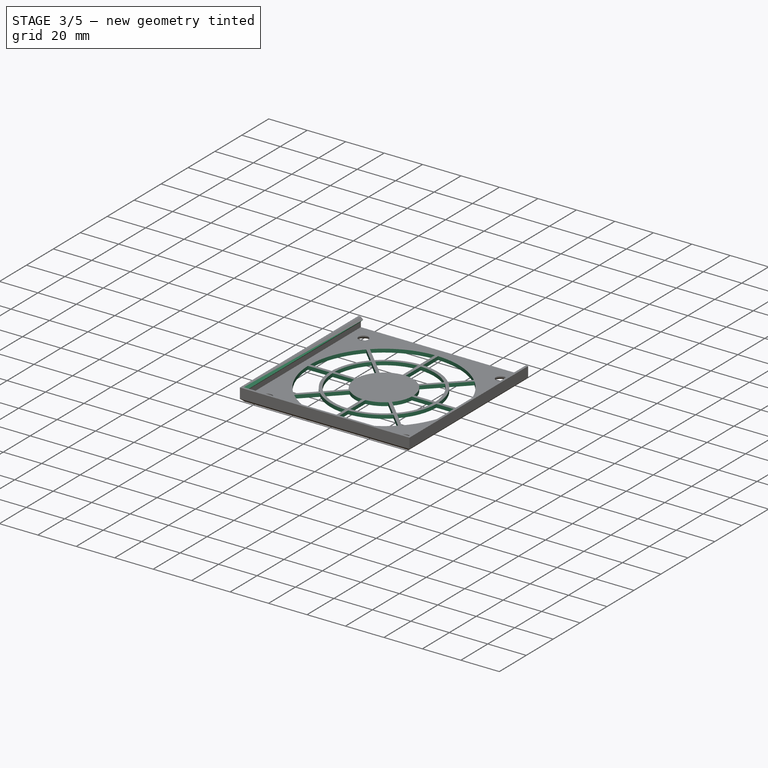
[diagram: stage 3 of 5 — iso view after this stage's code; geometry added in this stage tinted green]
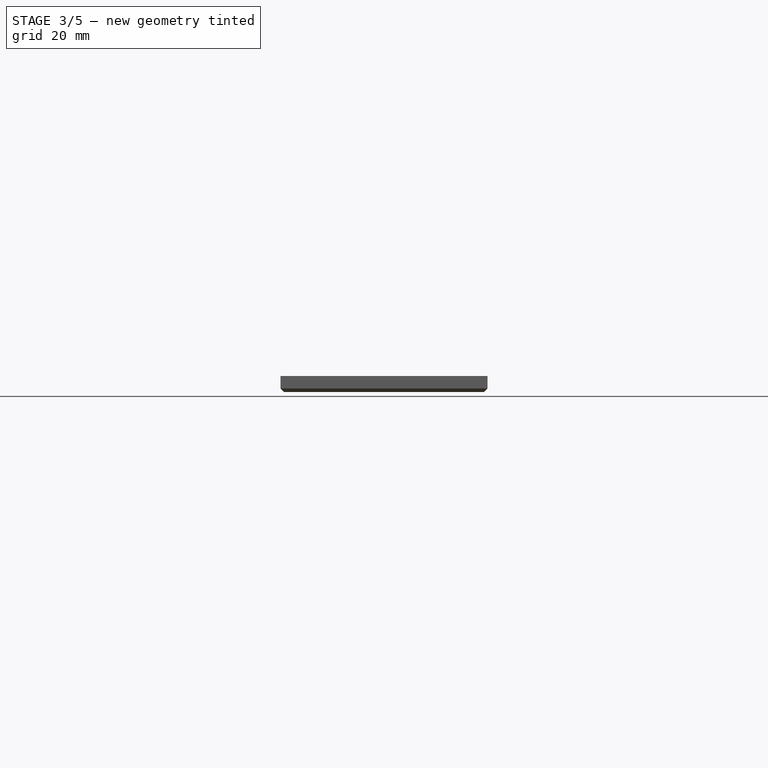
[diagram: stage 3 of 5 — front view after this stage's code; geometry added in this stage tinted green]
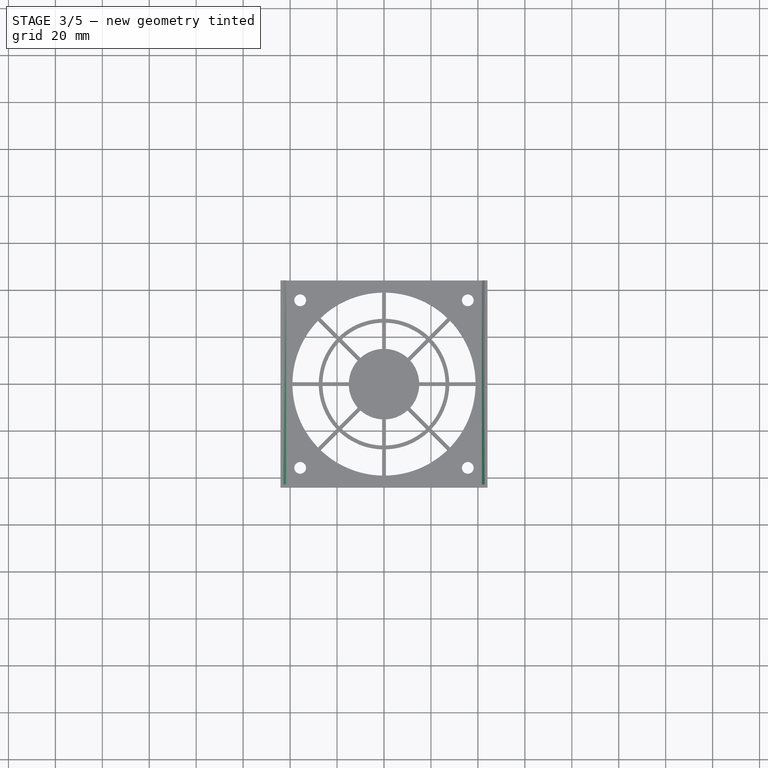
[diagram: stage 3 of 5 — top view after this stage's code; geometry added in this stage tinted green]
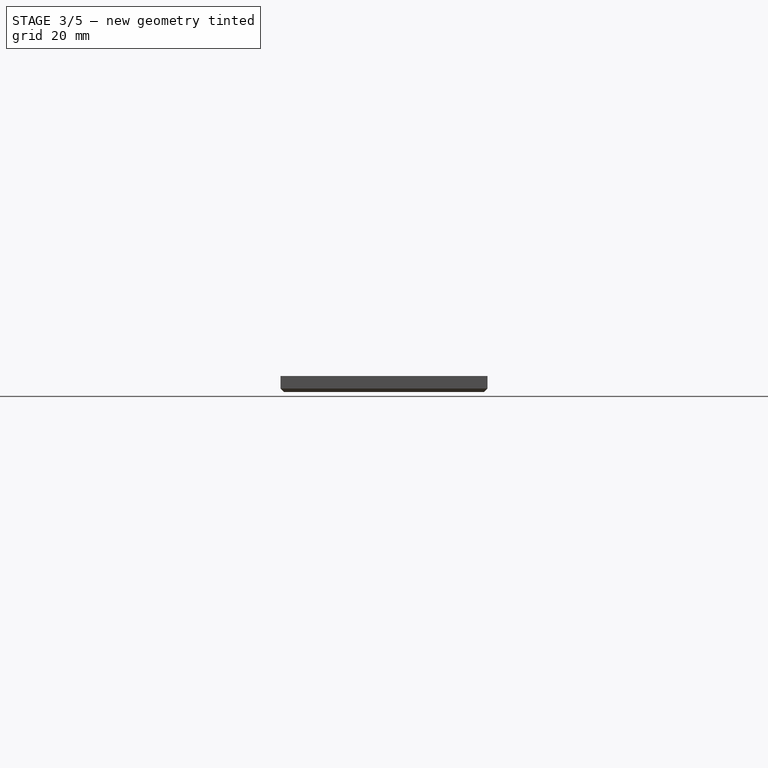
[diagram: stage 3 of 5 — right view after this stage's code; geometry added in this stage tinted green]
FEATURE [PartDesign::Pad] Pad003  label="FanFrame_"
  BaseFeature = -> Pad006
  Direction = (0,0,1)
  Length = 7
  Length2 = 10
  Profile = -> Sketch007
  ReferenceAxis = -> Sketch007 [N_Axis]
  Refine = true
  Reversed = true
  SideType = 0
  Suppressed = false
  Type = 0
  Type2 = 0
  expr: Length = <<VarSet>>.FanBumpHeight
FEATURE [PartDesign::Pad] Pad004  label="FanSupport_"
  BaseFeature = -> Pad003
  Direction = (0,0,1)
  Length = 1.8
  Length2 = 10
  Profile = -> Sketch008
  ReferenceAxis = -> Sketch008 [N_Axis]
  Refine = true
  SideType = 0
  Suppressed = false
  Type = 0
  Type2 = 0
  expr: Length = <<VarSet>>.FanSupportThickness
FEATURE [PartDesign::Chamfer] Chamfer  label="FanSupportScrewHeadsChamfer"
  Angle = 45
  Base = -> Pad004 [Edge326,Edge324,Edge330,Edge328]
  BaseFeature = -> Pad004
  ChamferType = 0
  FlipDirection = false
  Size = 1.2
  Size2 = 1.67
  SupportTransform = false
  Suppressed = false
  UseAllEdges = false
FEATURE [PartDesign::Chamfer] Chamfer004
  Angle = 45
  Base = -> Pad009 [Edge26,Edge22,Edge24,Edge28]
  BaseFeature = -> Pad009
  ChamferType = 0
  FlipDirection = false
  Size = 1.2
  Size2 = 1
  SupportTransform = false
  Suppressed = false
  UseAllEdges = false
  expr: Size = <<FanSupportScrewHeadsChamfer>>.Size
FEATURE [Sketcher::SketchObject] Sketch023
  ArcFitTolerance = 1e-06
  AttachmentSupport = -> [XZ_Plane005]
  ExternalGeometry = -> [Sketch021,ShapeBinder009]
  ExternalTypes = [0]
  FullyConstrained = true
  MakeInternals = false
  MapMode = 5
  Placement = pos=(0,0,0) rot=(1,0,0;1.5708rad)
  _ExternalGeoVersion = 0
  sketch-geometry (6):
    g0: LineSegment StartX=42.9 StartY=-0.2 StartZ=0 EndX=42.9 EndY=-2.6 EndZ=0
    g1: LineSegment StartX=42.9 StartY=-0.2 StartZ=0 EndX=41.7 EndY=-1.4 EndZ=0
    g2: LineSegment StartX=41.7 StartY=-1.4 StartZ=0 EndX=42.9 EndY=-2.6 EndZ=0
    g3: LineSegment StartX=-42.9 StartY=-0.2 StartZ=0 EndX=-42.9 EndY=-2.6 EndZ=0
    g4: LineSegment StartX=-42.9 StartY=-0.2 StartZ=0 EndX=-41.7 EndY=-1.4 EndZ=0
    g5: LineSegment StartX=-41.7 StartY=-1.4 StartZ=0 EndX=-42.9 EndY=-2.6 EndZ=0
  constraints (16):
    c: Coincident(g0,g-3)
    c: Vertical(g0)
    c: Coincident(g1,g0)
    c: Coincident(g2,g1)
    c: Coincident(g2,g0)
    c: Parallel(g1,g-6)
    c: Parallel(g2,g-7)
    c: Equal(g1,g-6)
    c: Coincident(g3,g-3)
    c: Vertical(g3)
    c: Coincident(g4,g3)
    c: Coincident(g5,g4)
    c: Coincident(g5,g3)
    c: Parallel(g5,g-5)
    c: Parallel(g4,g-4)
    c: Equal(g4,g-4)
FEATURE [PartDesign::Pad] Pad010
  BaseFeature = -> Chamfer004
  Direction = (0,-1,2e-16)
  Length = 88.2
  Length2 = 10
  Profile = -> Sketch023
  ReferenceAxis = -> Sketch023 [N_Axis]
  Refine = true
  SideType = 2
  Suppressed = false
  Type = 0
  Type2 = 0
  expr: Length = <<SG_Walls>>.Constraints.RidgeLen
FEATURE [Sketcher::SketchObject] Sketch024
  ArcFitTolerance = 1e-06
  AttachmentSupport = -> [XY_Plane005]
  ExternalGeometry = -> [ShapeBinder010]
  ExternalTypes = [0]
  FullyConstrained = true
  MakeInternals = false
  MapMode = 5
  _ExternalGeoVersion = 0
  sketch-geometry (8):
    g0: ArcOfCircle CenterX=5.1e-15 CenterY=3e-16 CenterZ=0 NormalX=0 NormalY=0 NormalZ=1 AngleXU=0 Radius=39 StartAngle=0.805912 EndAngle=1.55028
    g1: ArcOfCircle CenterX=-3.4776e-12 CenterY=-8.4024e-12 CenterZ=0 NormalX=0 NormalY=0 NormalZ=1 AngleXU=0 Radius=27.7967 StartAngle=0.814182 EndAngle=1.54201
    g2: ArcOfCircle CenterX=-1.0767e-11 CenterY=-2.59824e-11 CenterZ=0 NormalX=0 NormalY=0 NormalZ=1 AngleXU=0 Radius=26.1974 StartAngle=0.81594 EndAngle=1.54025
    g3: ArcOfCircle CenterX=-4.284e-13 CenterY=-1.0248e-12 CenterZ=0 NormalX=0 NormalY=0 NormalZ=1 AngleXU=0 Radius=15 StartAngle=0.838757 EndAngle=1.51744
    g4: LineSegment StartX=0.8 StartY=38.9918 StartZ=0 EndX=0.8 EndY=27.7852 EndZ=0
    g5: LineSegment StartX=19.0814 StartY=20.2128 StartZ=0 EndX=27.0057 EndY=28.137 EndZ=0
    g6: LineSegment StartX=10.0258 StartY=11.1572 StartZ=0 EndX=17.9501 EndY=19.0814 EndZ=0
    g7: LineSegment StartX=0.8 StartY=14.9787 StartZ=0 EndX=0.8 EndY=26.1852 EndZ=0
  constraints (20):
    c: Coincident(g0,g-3)
    c: Coincident(g0,g-3)
    c: Coincident(g1,g-4)
    c: Coincident(g1,g-4)
    c: Coincident(g2,g-5)
    c: Coincident(g2,g-5)
    c: Coincident(g3,g-6)
    c: Coincident(g3,g-6)
    c: Equal(g-3,g0)
    c: Equal(g-4,g1)
    c: Equal(g-5,g2)
    c: Equal(g-6,g3)
    c: Coincident(g4,g0)
    c: Coincident(g4,g1)
    c: Coincident(g5,g1)
    c: Coincident(g5,g0)
    c: Coincident(g6,g3)
    c: Coincident(g6,g2)
    c: Coincident(g7,g3)
    c: Coincident(g7,g2)
FEATURE [PartDesign::Pocket] Pocket006
  BaseFeature = -> Pad010
  Direction = (0,0,-1)
  Length = 5
  Length2 = 5
  Profile = -> Sketch024
  ReferenceAxis = -> Sketch024 [N_Axis]
  SideType = 0
  Suppressed = false
  Type = 1
  Type2 = 0
FEATURE [PartDesign::PolarPattern] PolarPattern002
  Angle = 360
  Axis = -> Sketch024 [N_Axis]
  BaseFeature = -> Pocket006
  Mode = 0
  Occurrences = 8
  Offset = 120
  Originals = -> [Pocket006]
  SpacingPattern = [0]
  Spacings = [-1,-1,-1,-1,-1,-1,-1]
  Suppressed = false
  TransformMode = 0
  expr: Occurrences = <<VarSet>>.GrillSegments
FEATURE [PartDesign::Chamfer] Chamfer005
  Angle = 45
  Base = -> PolarPattern002 [Edge77,Edge79,Edge80,Edge78]
  BaseFeature = -> PolarPattern002
  ChamferType = 0
  FlipDirection = false
  Size = 1.5
  Size2 = 1
  SupportTransform = false
  Suppressed = false
  UseAllEdges = false
  expr: Size = <<VarSet>>.FanSupportThickness - 0.3 mm
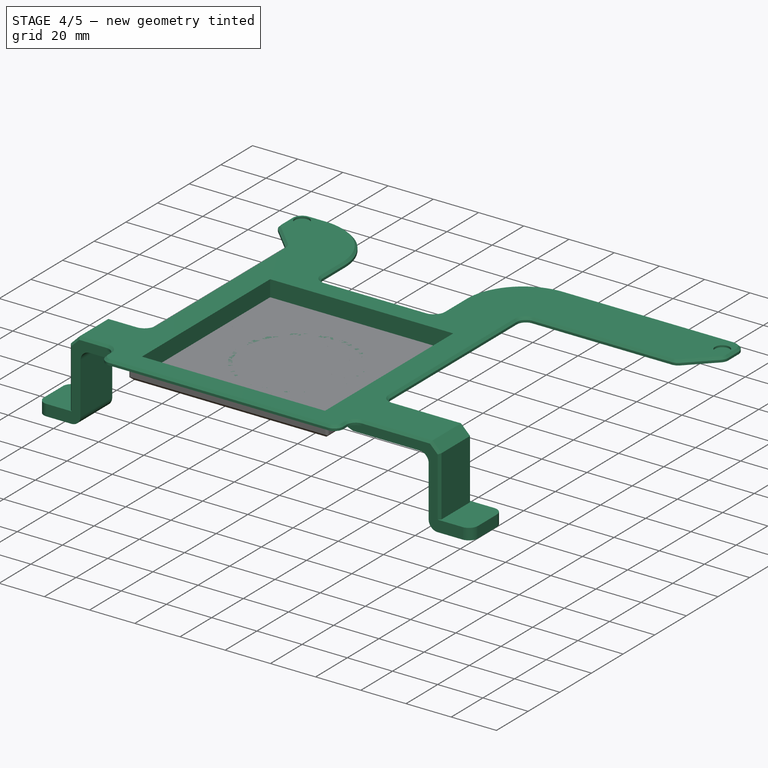
[diagram: stage 4 of 5 — iso view after this stage's code; geometry added in this stage tinted green]
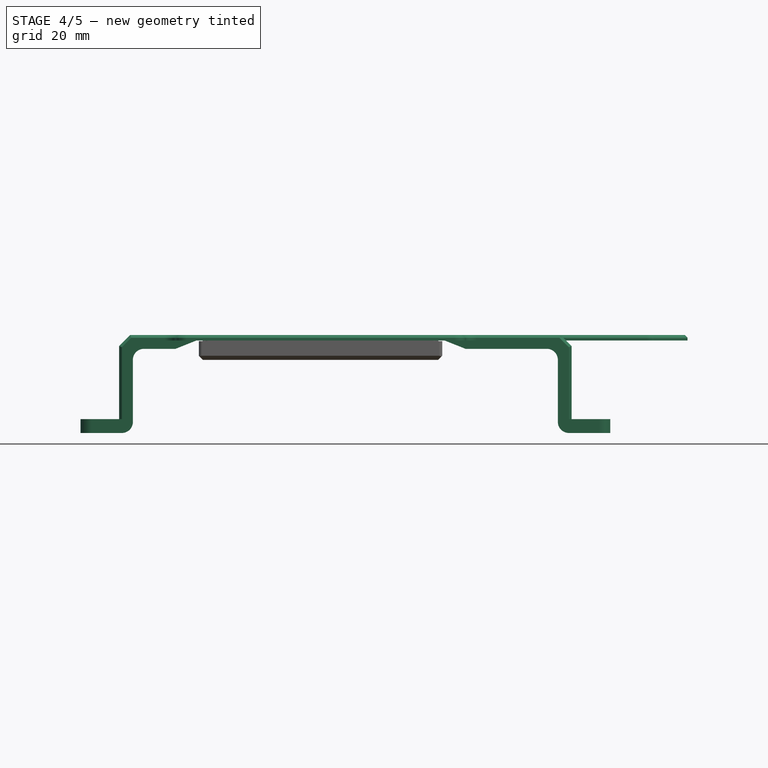
[diagram: stage 4 of 5 — front view after this stage's code; geometry added in this stage tinted green]
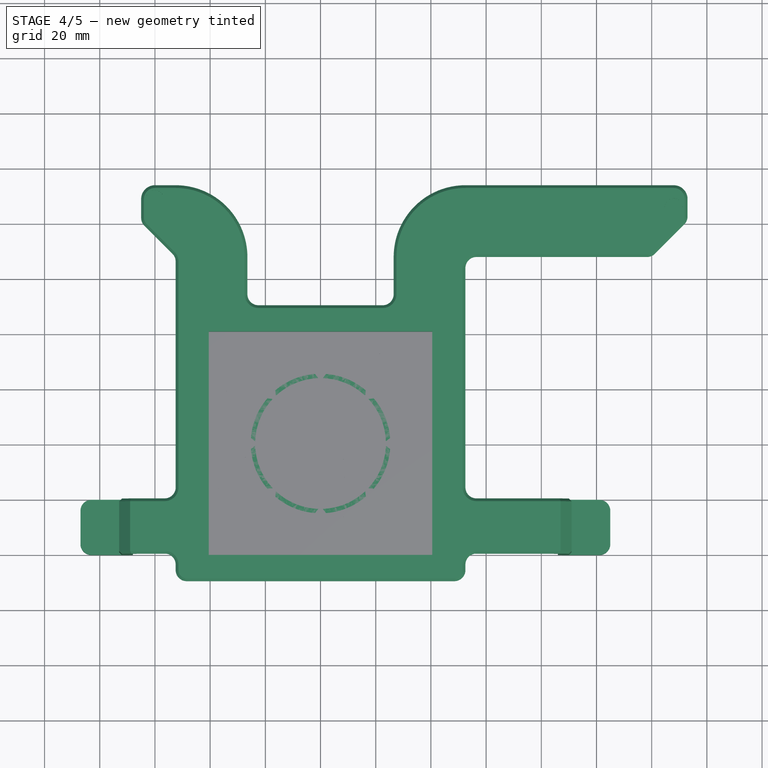
[diagram: stage 4 of 5 — top view after this stage's code; geometry added in this stage tinted green]
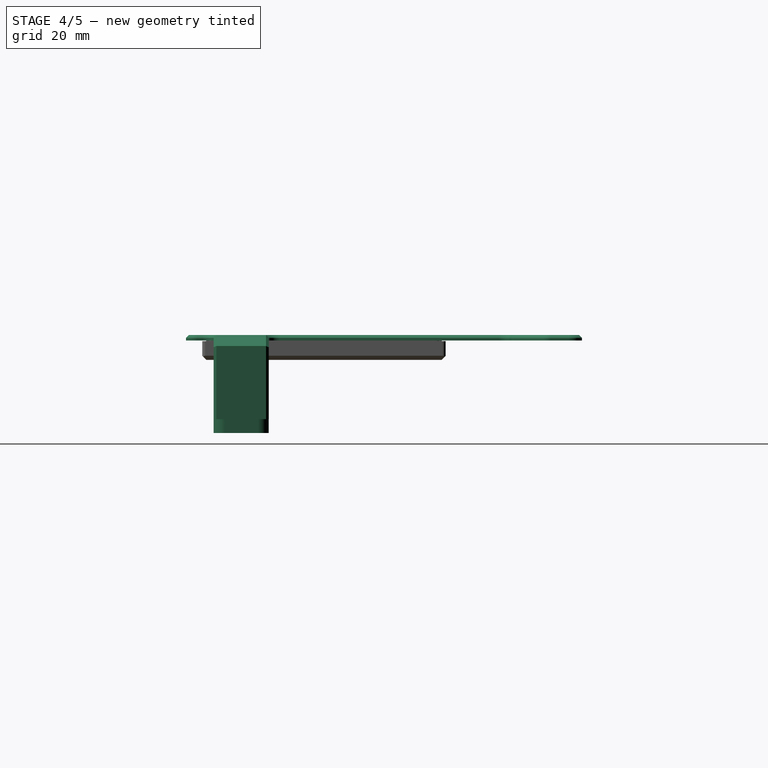
[diagram: stage 4 of 5 — right view after this stage's code; geometry added in this stage tinted green]
FEATURE [PartDesign::Pad] Pad005  label="FanSupportScrewPlugs_"
  BaseFeature = -> Chamfer
  Direction = (0,0,1)
  Length = 0.12
  Length2 = 10
  Profile = -> Sketch009
  ReferenceAxis = -> Sketch009 [N_Axis]
  Refine = true
  Reversed = true
  SideType = 0
  Suppressed = false
  Type = 0
  Type2 = 0
  expr: Length = <<VarSet>>.HolePlugThickness
FEATURE [PartDesign::Body] Body002  label="HolderExtGrill"
  AllowCompound = false
  Group = -> [Clone001,ShapeBinder001,Sketch015,Sketch016,Groove]
  Origin = -> Origin002
  Tip = -> Groove
FEATURE [PartDesign::ShapeBinder] ShapeBinder002
  Placement = pos=(0,0,0) rot=(1,0,0;1.5708rad)
  Support = -> [Sketch016]
  TraceSupport = false
FEATURE [Sketcher::SketchObject] Sketch017
  ArcFitTolerance = 1e-06
  AttachmentSupport = -> [XZ_Plane003]
  ExternalGeometry = -> [ShapeBinder002]
  ExternalTypes = [0]
  FullyConstrained = true
  MakeInternals = false
  MapMode = 5
  Placement = pos=(0,0,0) rot=(1,0,0;1.5708rad)
  _ExternalGeoVersion = 0
  expr: Constraints[5] = <<VarSet>>.SeparatedGrillGap
  sketch-geometry (5):
    g0: LineSegment StartX=-40.35 StartY=-5.2 StartZ=0 EndX=-41.1052 EndY=-6.1 EndZ=0
    g1: LineSegment StartX=-41.1052 StartY=-6.1 StartZ=0 EndX=-40.35 EndY=-7 EndZ=0
    g2: LineSegment StartX=-40.35 StartY=-5.2 StartZ=0 EndX=0 EndY=-5.2 EndZ=0
    g3: LineSegment StartX=0 StartY=-5.2 StartZ=0 EndX=0 EndY=-7 EndZ=0
    g4: LineSegment StartX=0 StartY=-7 StartZ=0 EndX=-40.35 EndY=-7 EndZ=0
  constraints (13):
    c: PointOnObject(g0,g-3)
    c: Coincident(g1,g0)
    c: PointOnObject(g1,g-4)
    c: Parallel(g1,g-5)
    c: Parallel(g0,g-6)
    c: DistanceX(g-6,g0) = 0.15
    c: Equal(g0,g-6)
    c: Coincident(g0,g2)
    c: Coincident(g2,g-7)
    c: Coincident(g2,g3)
    c: Coincident(g3,g-7)
    c: Coincident(g3,g4)
    c: Coincident(g4,g1)
FEATURE [PartDesign::Revolution] Revolution
  Angle = 360
  Angle2 = 60
  Axis = (0,2e-16,1)
  Base = (0,0,0)
  FuseOrder = 1
  Placement = pos=(0,0,0) rot=(1,0,0;1.5708rad)
  Profile = -> Sketch017
  ReferenceAxis = -> Sketch017 [V_Axis]
  Suppressed = false
  Type = 0
FEATURE [PartDesign::ShapeBinder] ShapeBinder003
  Support = -> [Sketch]
  TraceSupport = false
FEATURE [Sketcher::SketchObject] Sketch018  label="EG_GrillHoles"
  ArcFitTolerance = 1e-06
  AttachmentOffset = pos=(0,0,-7) rot=(0,0,1;0rad)
  AttachmentSupport = -> [XY_Plane003]
  ExternalGeometry = -> [ShapeBinder003]
  ExternalTypes = [0]
  FullyConstrained = true
  MakeInternals = false
  MapMode = 5
  Placement = pos=(0,0,-7) rot=(0,0,1;0rad)
  _ExternalGeoVersion = 0
  expr: .AttachmentOffset.Base.z = -<<VarSet>>.FanBumpHeight
  expr: Constraints[29] = <<VarSet>>.GrillLineWidth
  expr: Constraints[2] = 360 ° / <<VarSet>>.GrillSegments
  expr: Constraints[30] = <<VarSet>>.GrillLineWidth / 2
  sketch-geometry (14):
    g0: LineSegment [constr] StartX=0 StartY=39 StartZ=0 EndX=0 EndY=0 EndZ=0
    g1: LineSegment [constr] StartX=0 StartY=0 StartZ=0 EndX=27.5772 EndY=27.5772 EndZ=0
    g2: LineSegment [constr] StartX=14.9247 StartY=36.0313 StartZ=0 EndX=0 EndY=0 EndZ=0
    g3: LineSegment StartX=0.8 StartY=9.96795 StartZ=0 EndX=0.8 EndY=23.6799 EndZ=0
    g4: LineSegment StartX=6.48272 StartY=7.61409 StartZ=0 EndX=16.1785 EndY=17.3099 EndZ=0
    g5: LineSegment [constr] StartX=0.8 StartY=23.6799 StartZ=0 EndX=0 EndY=23.6799 EndZ=0
    g6: LineSegment [constr] StartX=16.1785 StartY=17.3099 StartZ=0 EndX=16.7442 EndY=16.7442 EndZ=0
    g7: ArcOfCircle CenterX=0 CenterY=0 CenterZ=0 NormalX=0 NormalY=0 NormalZ=1 AngleXU=0 Radius=10 StartAngle=0.865484 EndAngle=1.49071
    g8: ArcOfCircle CenterX=0 CenterY=0 CenterZ=0 NormalX=0 NormalY=0 NormalZ=1 AngleXU=0 Radius=23.6934 StartAngle=0.819169 EndAngle=1.53703
    g9: ArcOfCircle CenterX=0 CenterY=0 CenterZ=0 NormalX=0 NormalY=0 NormalZ=1 AngleXU=0 Radius=25.2925 StartAngle=0.817033 EndAngle=1.53916
    g10: ArcOfCircle CenterX=0 CenterY=0 CenterZ=0 NormalX=0 NormalY=0 NormalZ=1 AngleXU=0 Radius=39 StartAngle=0.805912 EndAngle=1.55028
    g11: LineSegment StartX=17.3099 StartY=18.4413 StartZ=0 EndX=27.0057 EndY=28.137 EndZ=0
    g12: LineSegment StartX=0.8 StartY=25.2799 StartZ=0 EndX=0.8 EndY=38.9918 EndZ=0
    g13: LineSegment [constr] StartX=0.8 StartY=23.6799 StartZ=0 EndX=0.8 EndY=25.2799 EndZ=0
  constraints (40):
    c: Vertical(g0)
    c: Coincident(g1,g0)
    c: Angle(g1,g0) = 0.785398
    c: Coincident(g2,g0)
    c: Symmetric(g1,g0,g2)
    c: Vertical(g3)
    c: Parallel(g4,g1)
    c: Coincident(g5,g3)
    c: Horizontal(g5)
    c: PointOnObject(g5,g0)
    c: Coincident(g6,g4)
    c: PointOnObject(g6,g1)
    c: Perpendicular(g1,g6)
    c: Coincident(g7,g0)
    c: Coincident(g7,g3)
    c: Coincident(g7,g4)
    c: Coincident(g8,g0)
    c: Coincident(g8,g3)
    c: Coincident(g8,g4)
    c: Coincident(g9,g0)
    c: Coincident(g10,g0)
    c: Coincident(g11,g9)
    c: Coincident(g11,g10)
    c: Coincident(g12,g9)
    c: Coincident(g12,g10)
    c: Vertical(g12)
    c: PointOnObject(g9,g3)
    c: Coincident(g13,g3)
    c: Coincident(g13,g9)
    c: DistanceY(g13,g13) = 1.6
    c: DistanceX(g5,g5) = 0.8
    c: Equal(g5,g6)
    c: PointOnObject(g9,g4)
    c: Radius(g7) = 10
    c: Equal(g3,g12)
    c: PointOnObject(g2,g10)
    c: Coincident(g0,g-3)
    c: PointOnObject(g0,g-3)
    c: PointOnObject(g10,g-3)
    c: Parallel(g11,g1)
FEATURE [PartDesign::Pocket] Pocket004  label="EG_GrillHoles_"
  BaseFeature = -> Revolution
  Direction = (0,0,-1)
  Length = 5
  Length2 = 5
  Placement = pos=(0,0,0) rot=(1,0,0;1.5708rad)
  Profile = -> Sketch018
  ReferenceAxis = -> Sketch018 [N_Axis]
  Reversed = true
  SideType = 0
  Suppressed = false
  Type = 1
  Type2 = 0
FEATURE [PartDesign::PolarPattern] PolarPattern001
  Angle = 360
  Axis = -> Sketch018 [N_Axis]
  BaseFeature = -> Pocket004
  Mode = 0
  Occurrences = 8
  Offset = 120
  Originals = -> [Pocket004]
  Placement = pos=(0,0,0) rot=(1,0,0;1.5708rad)
  SpacingPattern = [0]
  Spacings = [-1,-1,-1,-1,-1,-1,-1]
  Suppressed = false
  TransformMode = 0
  expr: Occurrences = <<VarSet>>.GrillSegments
FEATURE [PartDesign::Fillet] Fillet002
  Base = -> Pad007 [Edge229,Edge234,Edge230,Edge232]
  BaseFeature = -> Pad007
  Radius = 2
  SupportTransform = false
  Suppressed = false
  UseAllEdges = false
FEATURE [Sketcher::SketchObject] Sketch020  label="HSG_GuideGroove"
  ArcFitTolerance = 1e-06
  AttachmentSupport = -> [XZ_Plane004]
  ExternalGeometry = -> [Sketch019,ShapeBinder005]
  ExternalTypes = [0]
  FullyConstrained = true
  MakeInternals = false
  MapMode = 5
  Placement = pos=(0,0,0) rot=(1,0,0;1.5708rad)
  _ExternalGeoVersion = 0
  expr: Constraints[20] = <<VarSet>>.Tolerance
  expr: Constraints[5] = 1 mm + <<VarSet>>.Tolerance
  sketch-geometry (7):
    g0: LineSegment StartX=-42.7 StartY=-0.2 StartZ=0 EndX=-41.5 EndY=-1.4 EndZ=0
    g1: LineSegment StartX=-41.5 StartY=-1.4 StartZ=0 EndX=-42.7 EndY=-2.6 EndZ=0
    g2: LineSegment StartX=-42.7 StartY=-2.6 StartZ=0 EndX=-42.7 EndY=-0.2 EndZ=0
    g3: LineSegment [constr] StartX=-41.5 StartY=-1.4 StartZ=0 EndX=-42.7 EndY=-1.4 EndZ=0
    g4: LineSegment StartX=42.7 StartY=-0.2 StartZ=0 EndX=41.5 EndY=-1.4 EndZ=0
    g5: LineSegment StartX=41.5 StartY=-1.4 StartZ=0 EndX=42.7 EndY=-2.6 EndZ=0
    g6: LineSegment StartX=42.7 StartY=-2.6 StartZ=0 EndX=42.7 EndY=-0.2 EndZ=0
  constraints (21):
    c: Coincident(g0,g1)
    c: Coincident(g1,g2)
    c: Coincident(g2,g0)
    c: Equal(g0,g1)
    c: Perpendicular(g0,g1)
    c: DistanceX(g0,g0) = 1.2
    c: Coincident(g3,g0)
    c: Horizontal(g3)
    c: Coincident(g4,g5)
    c: Coincident(g5,g6)
    c: Coincident(g6,g4)
    c: Equal(g2,g6)
    c: Equal(g0,g4)
    c: Equal(g4,g5)
    c: PointOnObject(g4,g3)
    c: Vertical(g2)
    c: Vertical(g6)
    c: PointOnObject(g-3,g6)
    c: PointOnObject(g-3,g2)
    c: PointOnObject(g3,g2)
    c: DistanceY(g0,g-3) = 0.2
FEATURE [PartDesign::Pocket] Pocket005  label="HSG_GuideGroove_"
  BaseFeature = -> Fillet002
  Direction = (0,1,-2e-16)
  Length = 5
  Length2 = 5
  Profile = -> Sketch020
  ReferenceAxis = -> Sketch020 [N_Axis]
  SideType = 2
  Suppressed = false
  Type = 1
  Type2 = 0
FEATURE [PartDesign::Fillet] Fillet003
  Base = -> Chamfer005 [Edge217,Edge219,Edge220,Edge231]
  BaseFeature = -> Chamfer005
  Radius = 1.19
  SupportTransform = false
  Suppressed = false
  UseAllEdges = false
  expr: Radius = <<SG_Walls>>.Constraints.Thickness - 0.01 mm
FEATURE [PartDesign::Body] Body005  label="SlidingGrill"
  AllowCompound = false
  Group = -> [ShapeBinder006,ShapeBinder007,ShapeBinder008,ShapeBinder009,ShapeBinder010,Sketch021,Pad008,Sketch022,Pad009,Chamfer004,Sketch023,Pad010,Sketch024,Pocket006,PolarPattern002,Chamfer005,Fillet003]
  Origin = -> Origin005
  Tip = -> Fillet003
FEATURE [App::Point] Origin006  label="Origin"
  Role = Origin
FEATURE [App::Point] Origin007  label="Origin"
  Role = Origin
FEATURE [App::Point] Origin008  label="Origin"
  Role = Origin
FEATURE [App::Point] Origin009  label="Origin"
  Role = Origin
FEATURE [App::Point] Origin010  label="Origin"
  Role = Origin
FEATURE [App::Point] Origin011  label="Origin"
  Role = Origin
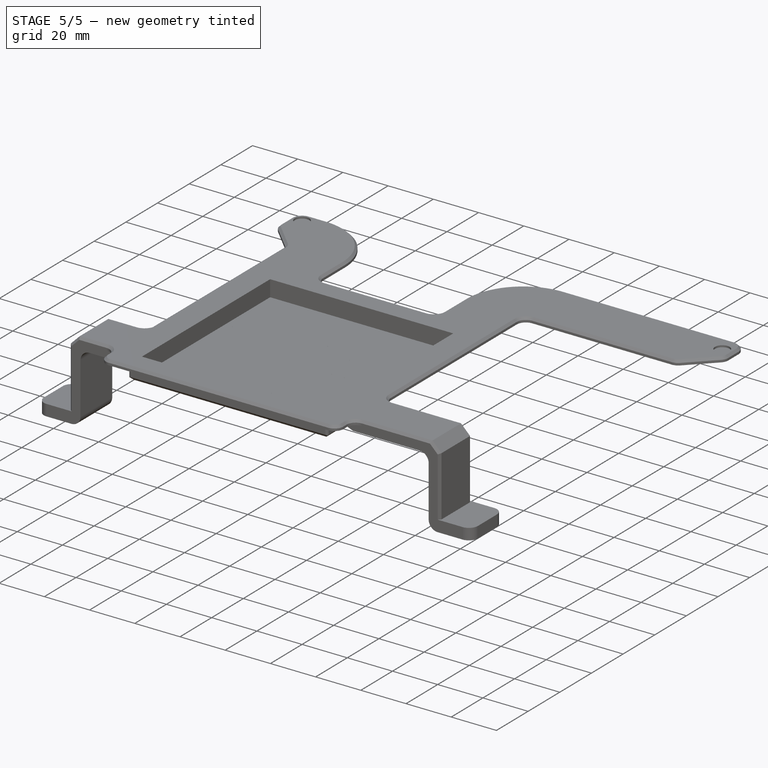
[diagram: stage 5 of 5 — iso view after this stage's code; geometry added in this stage tinted green]
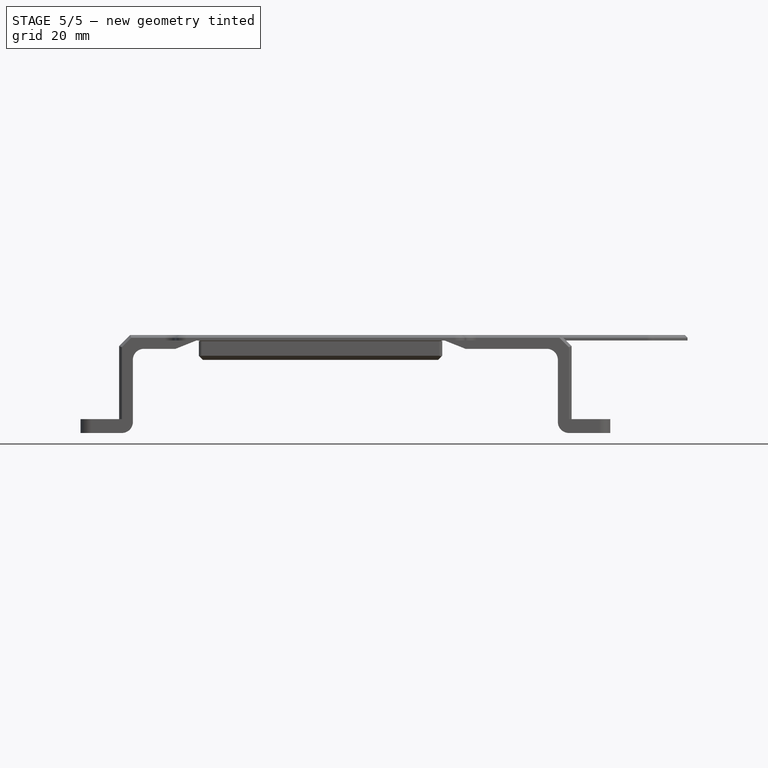
[diagram: stage 5 of 5 — front view after this stage's code; geometry added in this stage tinted green]
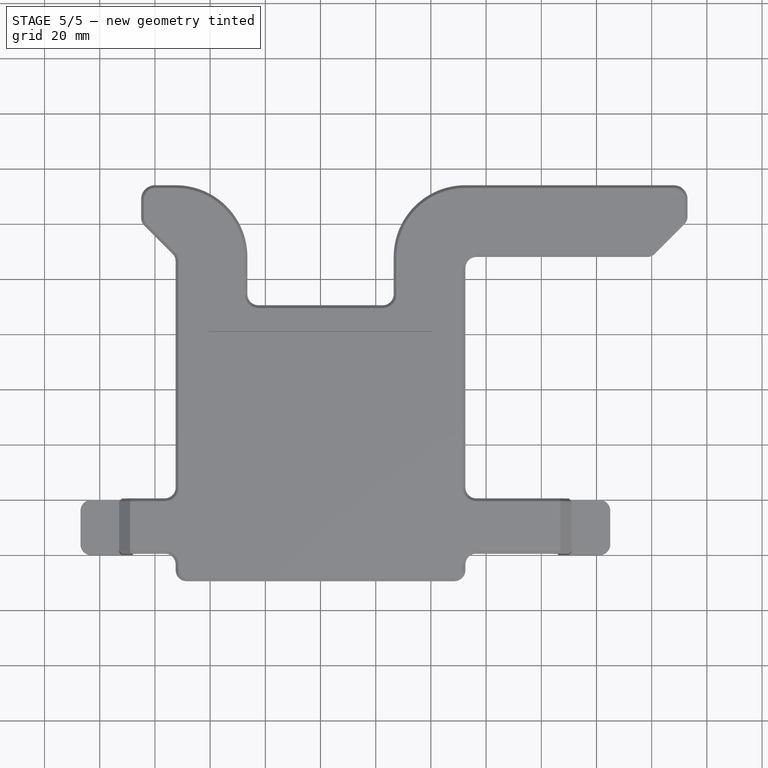
[diagram: stage 5 of 5 — top view after this stage's code; geometry added in this stage tinted green]
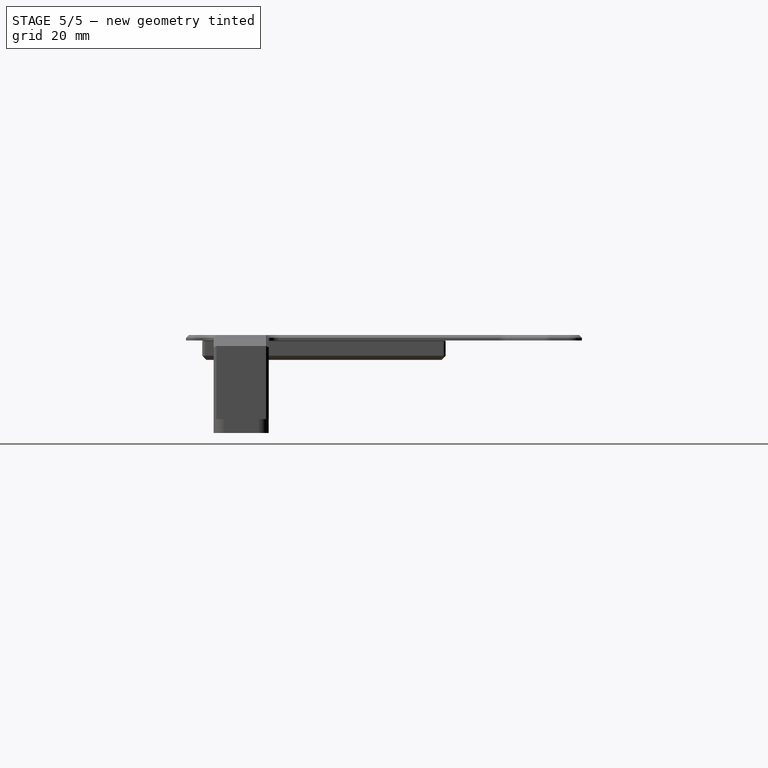
[diagram: stage 5 of 5 — right view after this stage's code; geometry added in this stage tinted green]
FEATURE [PartDesign::Fillet] Fillet001  label="FanHolderFillet"
  Base = -> Pad005 [Face7,Face6,Face9,Face8]
  BaseFeature = -> Pad005
  Radius = 2
  SupportTransform = false
  Suppressed = false
  UseAllEdges = false
FEATURE [PartDesign::Body] Body  label="HolderBase"
  AllowCompound = false
  Group = -> [Sketch,Sketch001,Sketch002,Pad,Sketch003,Pocket,Sketch006,Pad002,DatumPlane,Sketch004,Pad001,Chamfer001,Chamfer002,Fillet,Chamfer003,Sketch005,Pocket001,Sketch010,Pad006,Sketch007,Pad003,Sketch008,Pad004,Chamfer,Sketch009,Pad005,Fillet001]
  Origin = -> Origin
  Tip = -> Fillet001
FEATURE [App::VarSet] VarSet
  FanBumpHeight = 7
  FanSupportThickness = 1.8
  GrillGrooveAngle = 100
  GrillHelper = 1
  GrillLineWidth = 1.6
  GrillSegments = 8
  HolePlugThickness = 0.12
  RemoveGrill = 0
  SeparatedGrillGap = 0.15
  Tolerance = 0.2
FEATURE [PartDesign::FeatureBase] Clone
  BaseFeature = -> Body
  Suppressed = false
FEATURE [PartDesign::ShapeBinder] ShapeBinder
  Support = -> [Sketch]
  TraceSupport = false
FEATURE [Sketcher::SketchObject] Sketch013  label="HWG_GrillCuts"
  ArcFitTolerance = 1e-06
  AttachmentOffset = pos=(0,0,-7) rot=(0,0,1;0rad)
  AttachmentSupport = -> [XY_Plane001]
  ExternalGeometry = -> [ShapeBinder]
  ExternalTypes = [0]
  FullyConstrained = true
  MakeInternals = false
  MapMode = 5
  Placement = pos=(0,0,-7) rot=(0,0,1;0rad)
  _ExternalGeoVersion = 0
  expr: .AttachmentOffset.Base.z = -<<VarSet>>.FanBumpHeight
  expr: Constraints[29] = <<VarSet>>.GrillLineWidth
  expr: Constraints[2] = 360 ° / <<VarSet>>.GrillSegments
  expr: Constraints[30] = <<VarSet>>.GrillLineWidth / 2
  sketch-geometry (14):
    g0: LineSegment [constr] StartX=0 StartY=39 StartZ=0 EndX=0 EndY=0 EndZ=0
    g1: LineSegment [constr] StartX=0 StartY=0 StartZ=0 EndX=27.5772 EndY=27.5772 EndZ=0
    g2: LineSegment [constr] StartX=14.9247 StartY=36.0313 StartZ=0 EndX=1.8e-15 EndY=0 EndZ=0
    g3: LineSegment StartX=0.8 StartY=14.9787 StartZ=0 EndX=0.8 EndY=26.1852 EndZ=0
    g4: LineSegment StartX=10.0258 StartY=11.1572 StartZ=0 EndX=17.9501 EndY=19.0814 EndZ=0
    g5: LineSegment [constr] StartX=0.8 StartY=26.1852 StartZ=0 EndX=0 EndY=26.1852 EndZ=0
    g6: LineSegment [constr] StartX=17.9501 StartY=19.0814 StartZ=0 EndX=18.5157 EndY=18.5157 EndZ=0
    g7: ArcOfCircle CenterX=0 CenterY=0 CenterZ=0 NormalX=0 NormalY=0 NormalZ=1 AngleXU=0 Radius=15 StartAngle=0.838757 EndAngle=1.51744
    g8: ArcOfCircle CenterX=0 CenterY=0 CenterZ=0 NormalX=0 NormalY=0 NormalZ=1 AngleXU=0 Radius=26.1974 StartAngle=0.81594 EndAngle=1.54025
    g9: ArcOfCircle CenterX=0 CenterY=0 CenterZ=0 NormalX=0 NormalY=0 NormalZ=1 AngleXU=0 Radius=27.7967 StartAngle=0.814182 EndAngle=1.54201
    g10: ArcOfCircle CenterX=0 CenterY=0 CenterZ=0 NormalX=0 NormalY=0 NormalZ=1 AngleXU=0 Radius=39 StartAngle=0.805912 EndAngle=1.55028
    g11: LineSegment StartX=19.0814 StartY=20.2128 StartZ=0 EndX=27.0057 EndY=28.137 EndZ=0
    g12: LineSegment StartX=0.8 StartY=27.7852 StartZ=0 EndX=0.8 EndY=38.9918 EndZ=0
    g13: LineSegment [constr] StartX=0.8 StartY=26.1852 StartZ=0 EndX=0.8 EndY=27.7852 EndZ=0
  constraints (40):
    c: Vertical(g0)
    c: Coincident(g1,g0)
    c: Angle(g1,g0) = 0.785398
    c: Coincident(g2,g0)
    c: Symmetric(g1,g0,g2)
    c: Vertical(g3)
    c: Parallel(g4,g1)
    c: Coincident(g5,g3)
    c: Horizontal(g5)
    c: PointOnObject(g5,g0)
    c: Coincident(g6,g4)
    c: PointOnObject(g6,g1)
    c: Perpendicular(g1,g6)
    c: Coincident(g7,g0)
    c: Coincident(g7,g3)
    c: Coincident(g7,g4)
    c: Coincident(g8,g0)
    c: Coincident(g8,g3)
    c: Coincident(g8,g4)
    c: Coincident(g9,g0)
    c: Coincident(g10,g0)
    c: Coincident(g11,g9)
    c: Coincident(g11,g10)
    c: Coincident(g12,g9)
    c: Coincident(g12,g10)
    c: Vertical(g12)
    c: PointOnObject(g9,g3)
    c: Coincident(g13,g3)
    c: Coincident(g13,g9)
    c: DistanceY(g13,g13) = 1.6
    c: DistanceX(g5,g5) = 0.8
    c: Equal(g5,g6)
    c: PointOnObject(g9,g4)
    c: PointOnObject(g10,g4)
    c: Radius(g7) = 15
    c: Equal(g3,g12)
    c: Coincident(g0,g-3)
    c: PointOnObject(g0,g-3)
    c: PointOnObject(g10,g-3)
    c: PointOnObject(g2,g10)
FEATURE [PartDesign::Pocket] Pocket002
  BaseFeature = -> Clone
  Direction = (0,0,-1)
  Length = 1.68
  Length2 = 5
  Profile = -> Sketch013
  ReferenceAxis = -> Sketch013 [N_Axis]
  Reversed = true
  SideType = 0
  Suppressed = false
  Type = 0
  Type2 = 0
  expr: Length = <<VarSet>>.FanSupportThickness - <<VarSet>>.HolePlugThickness * <<VarSet>>.GrillHelper
FEATURE [PartDesign::PolarPattern] PolarPattern
  Angle = 360
  Axis = -> Sketch013 [N_Axis]
  BaseFeature = -> Pocket002
  Mode = 0
  Occurrences = 8
  Offset = 120
  Originals = -> [Pocket002]
  SpacingPattern = [0]
  Spacings = [-1,-1,-1,-1,-1,-1,-1]
  Suppressed = false
  TransformMode = 0
  expr: Occurrences = <<VarSet>>.GrillSegments
FEATURE [Sketcher::SketchObject] Sketch014
  ArcFitTolerance = 1e-06
  AttachmentOffset = pos=(0,0,-7) rot=(0,0,1;0rad)
  AttachmentSupport = -> [XY_Plane001]
  ExternalGeometry = -> [ShapeBinder]
  ExternalTypes = [0]
  FullyConstrained = true
  MakeInternals = false
  MapMode = 5
  Placement = pos=(0,0,-7) rot=(0,0,1;0rad)
  _ExternalGeoVersion = 0
  expr: .AttachmentOffset.Base.z = <<HWG_GrillCuts>>.Placement.Base.z
  sketch-geometry (1):
    g0: Circle CenterX=0 CenterY=0 CenterZ=0 NormalX=0 NormalY=0 NormalZ=1 AngleXU=0 Radius=39
  constraints (2):
    c: Equal(g0,g-3)
    c: Coincident(g0,g-3)
FEATURE [PartDesign::Pocket] Pocket003
  BaseFeature = -> PolarPattern
  Direction = (0,0,-1)
  Length = 0.1
  Length2 = 0
  Profile = -> Sketch014
  ReferenceAxis = -> Sketch014 [N_Axis]
  Refine = true
  SideType = 1
  Suppressed = false
  Type = 0
  Type2 = 0
  expr: Length2 = <<VarSet>>.FanSupportThickness * <<VarSet>>.RemoveGrill
FEATURE [PartDesign::Body] Body001  label="HolderWithGrill"
  AllowCompound = false
  Group = -> [Clone,ShapeBinder,Sketch013,Pocket002,PolarPattern,Sketch014,Pocket003]
  Origin = -> Origin001
  Tip = -> Pocket003
FEATURE [PartDesign::FeatureBase] Clone001
  BaseFeature = -> Body
  Suppressed = false
FEATURE [PartDesign::ShapeBinder] ShapeBinder001
  Support = -> [Sketch]
  TraceSupport = false
FEATURE [Sketcher::SketchObject] Sketch015  label="GS_Template_XY"
  ArcFitTolerance = 1e-06
  AttachmentOffset = pos=(0,0,-7) rot=(0,0,1;0rad)
  AttachmentSupport = -> [XY_Plane002]
  ExternalGeometry = -> [ShapeBinder001]
  ExternalTypes = [0]
  FullyConstrained = true
  MakeInternals = false
  MapMode = 5
  Placement = pos=(0,0,-7) rot=(0,0,1;0rad)
  _ExternalGeoVersion = 0
  expr: .AttachmentOffset.Base.z = -<<VarSet>>.FanBumpHeight
  sketch-geometry (2):
    g0: Circle CenterX=0 CenterY=0 CenterZ=0 NormalX=0 NormalY=0 NormalZ=1 AngleXU=0 Radius=40.5
    g1: Circle CenterX=0 CenterY=0 CenterZ=0 NormalX=0 NormalY=0 NormalZ=1 AngleXU=0 Radius=39
  constraints (4):
    c: Coincident(g0,g-3)
    c: Tangent(g0,g-4)
    c: Equal(g1,g-3)
    c: Coincident(g-3,g1)
FEATURE [Sketcher::SketchObject] Sketch016
  ArcFitTolerance = 1e-06
  AttachmentSupport = -> [XZ_Plane002]
  ExternalGeometry = -> [Sketch015]
  ExternalTypes = [0]
  FullyConstrained = true
  MakeInternals = false
  MapMode = 5
  Placement = pos=(0,0,0) rot=(1,0,0;1.5708rad)
  _ExternalGeoVersion = 0
  expr: Constraints[11] = <<VarSet>>.FanSupportThickness
  expr: Constraints[12] = <<VarSet>>.GrillGrooveAngle
  sketch-geometry (5):
    g0: LineSegment StartX=0 StartY=-7 StartZ=0 EndX=-40.5 EndY=-7 EndZ=0
    g1: LineSegment StartX=-40.5 StartY=-7 StartZ=0 EndX=-41.2552 EndY=-6.1 EndZ=0
    g2: LineSegment StartX=-41.2552 StartY=-6.1 StartZ=0 EndX=-40.5 EndY=-5.2 EndZ=0
    g3: LineSegment StartX=-40.5 StartY=-5.2 StartZ=0 EndX=0 EndY=-5.2 EndZ=0
    g4: LineSegment StartX=0 StartY=-5.2 StartZ=0 EndX=0 EndY=-7 EndZ=0
  constraints (13):
    c: Coincident(g1,g0)
    c: Coincident(g2,g1)
    c: Coincident(g3,g2)
    c: Horizontal(g3)
    c: Coincident(g4,g3)
    c: Coincident(g4,g0)
    c: Vertical(g4)
    c: Equal(g3,g0)
    c: Coincident(g0,g-3)
    c: Equal(g1,g2)
    c: Symmetric(g0,g-3,g0)
    c: DistanceY(g0,g2) = 1.8
    c: Angle(g1,g2) = 1.74533
FEATURE [PartDesign::Groove] Groove
  Angle = 360
  Angle2 = 60
  Axis = (0,2e-16,1)
  Base = (0,0,0)
  BaseFeature = -> Clone001
  Profile = -> Sketch016
  ReferenceAxis = -> Sketch016 [V_Axis]
  Reversed = true
  Suppressed = false
  Type = 0
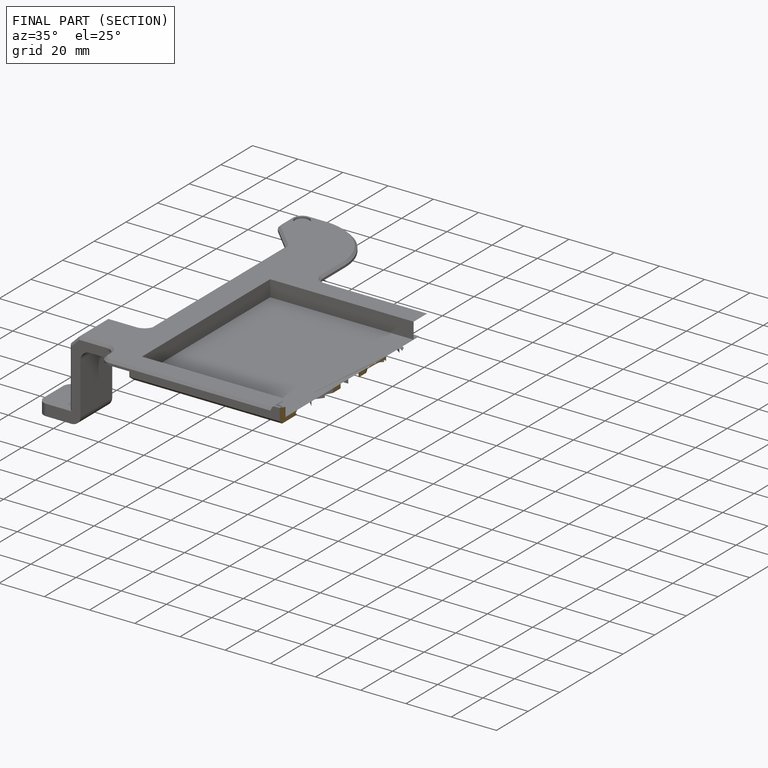
[diagram: finished part — half-section view (interior)]
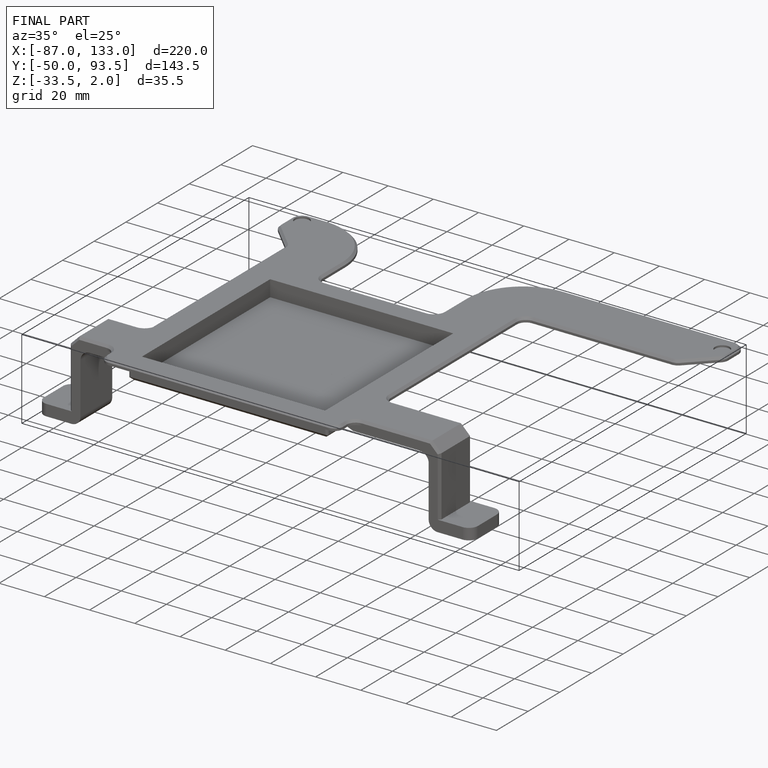
[diagram: finished part — iso view with bounding-box wireframe]
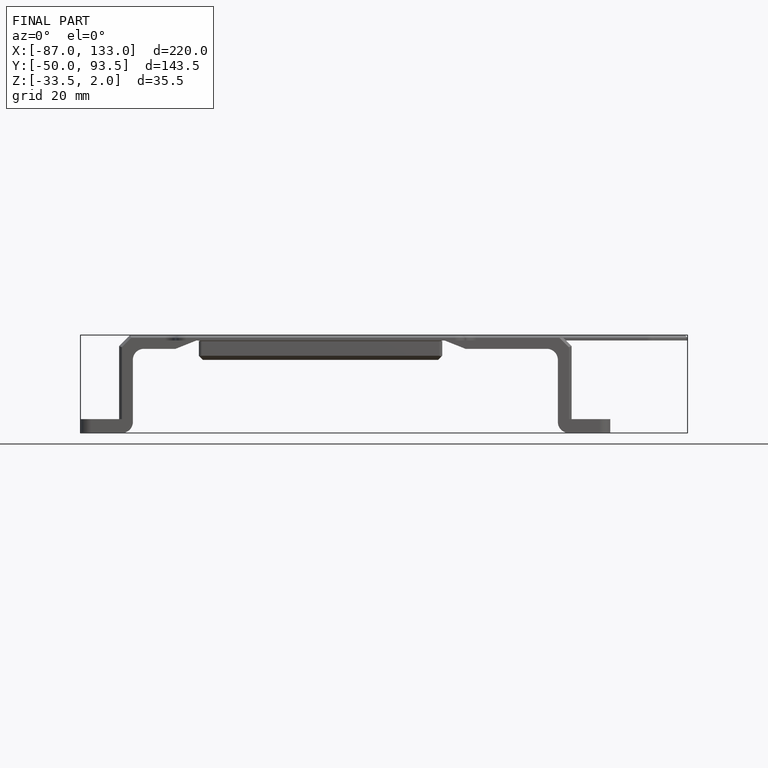
[diagram: finished part — front view with bounding-box wireframe]
